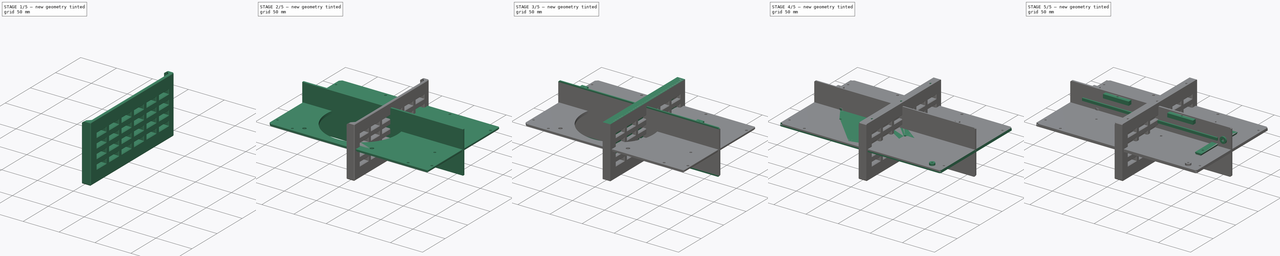
[diagram: build sequence overview — one tinted view per stage of 5, left to right]
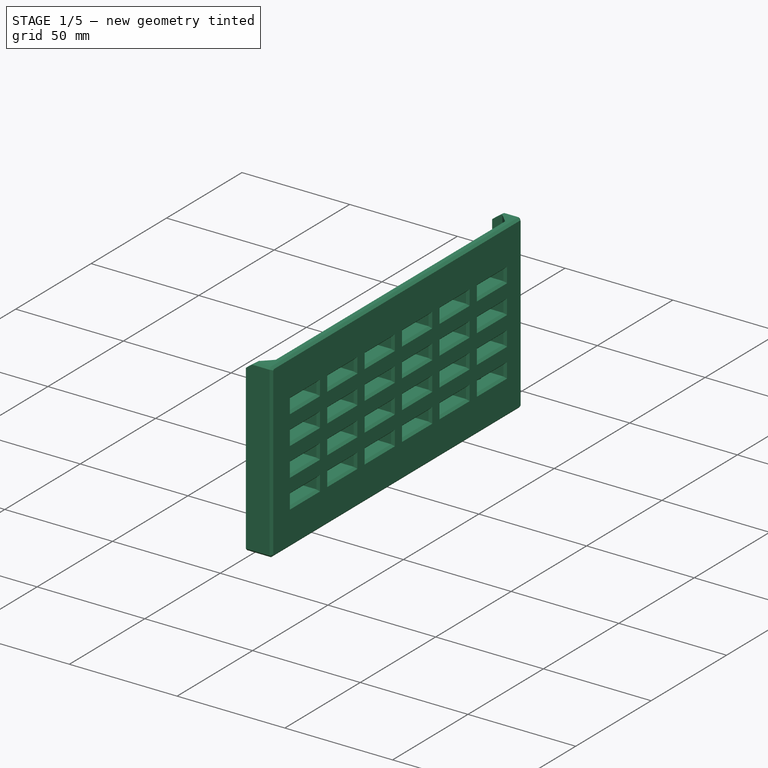
[diagram: stage 1 of 5 — iso view after this stage's code; geometry added in this stage tinted green]
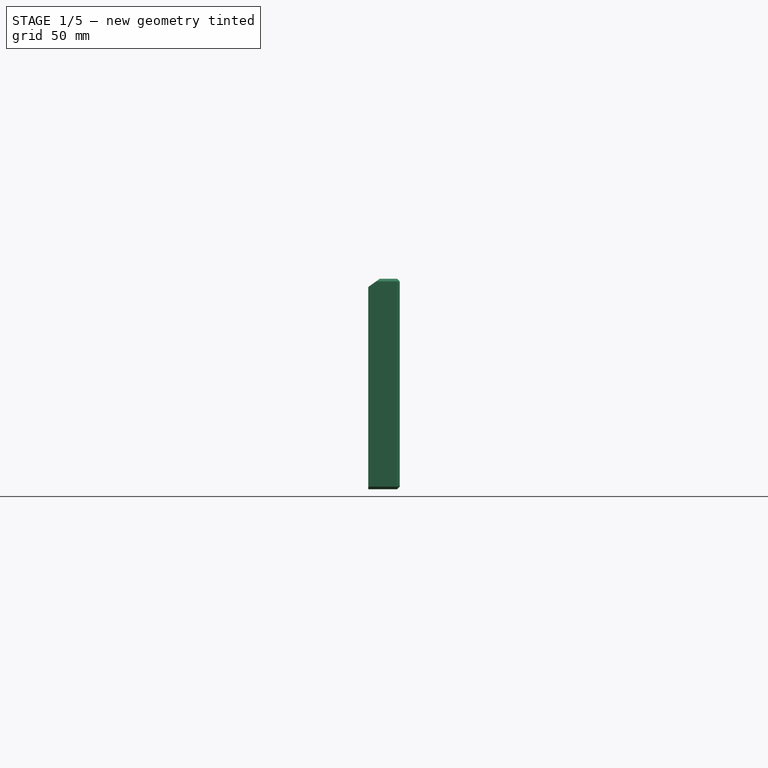
[diagram: stage 1 of 5 — front view after this stage's code; geometry added in this stage tinted green]
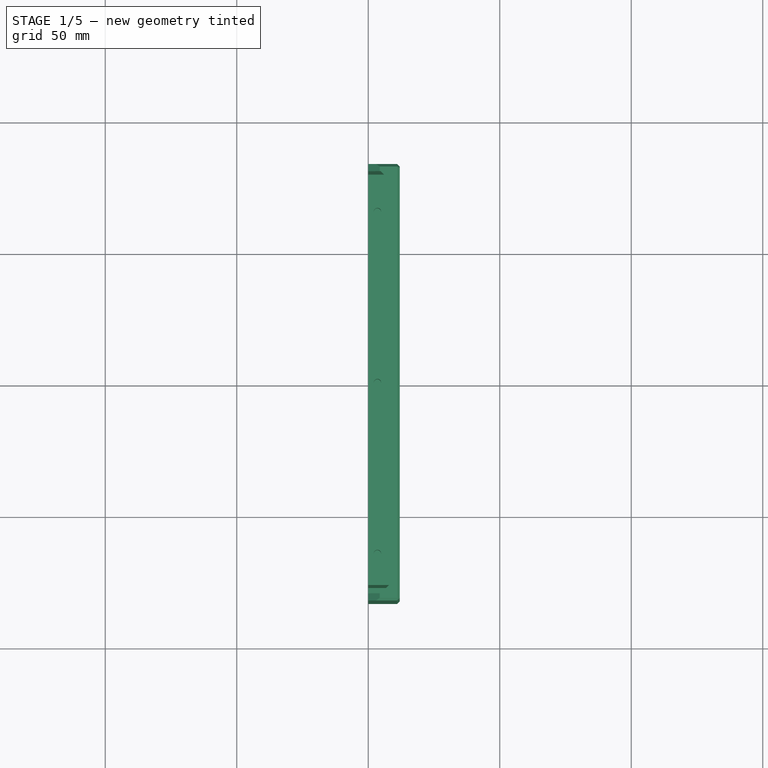
[diagram: stage 1 of 5 — top view after this stage's code; geometry added in this stage tinted green]
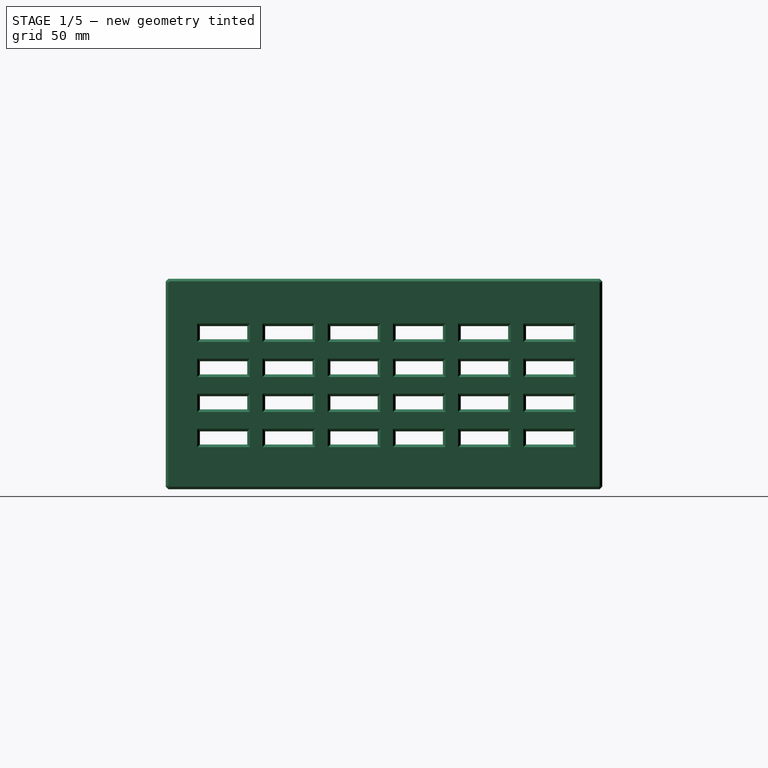
[diagram: stage 1 of 5 — right view after this stage's code; geometry added in this stage tinted green]
FCSTD DOCUMENT  (FreeCAD 0.19R)
Label: PowerBox
License: All rights reserved
LicenseURL: http://en.wikipedia.org/wiki/All_rights_reserved
objects: Sketcher::SketchObject×49, PartDesign::Pocket×29, PartDesign::Pad×18, PartDesign::Chamfer×9, PartDesign::Body×7, PartDesign::Mirrored×5, PartDesign::LinearPattern×3, PartDesign::MultiTransform×2
note: 178 computed .brp shape members not serialized (recipe doc carries the construction recipe); baked Part::Feature solids carry a one-line shape summary decoded from their .brp

FEATURE [Sketcher::SketchObject] Sketch004  label="MainPad"
  FullyConstrained = true
  MapMode = 5
  Placement = pos=(0,0,0) rot=(0.57735,0.57735,0.57735;2.0944rad)
  Support = -> [YZ_Plane001]
  sketch-geometry (4):
    g0: LineSegment StartX=-83 StartY=40 StartZ=0 EndX=83 EndY=40 EndZ=0
    g1: LineSegment StartX=83 StartY=40 StartZ=0 EndX=83 EndY=-40 EndZ=0
    g2: LineSegment StartX=83 StartY=-40 StartZ=0 EndX=-83 EndY=-40 EndZ=0
    g3: LineSegment StartX=-83 StartY=-40 StartZ=0 EndX=-83 EndY=40 EndZ=0
  constraints (10):
    c: Coincident(g0,g1)
    c: Coincident(g1,g2)
    c: Coincident(g2,g3)
    c: Coincident(g3,g0)
    c: Horizontal(g0)
    c: Vertical(g3)
    c: Symmetric(g1,g2,g-2)
    c: Distance(g2) = 166
    c: Distance(g1) = 80
    c: Symmetric(g1,g0,g-1)
FEATURE [PartDesign::Pad] Pad002
  Direction = (1,1,1)
  Length = 12
  Length2 = 100
  Placement = pos=(0,0,0) rot=(0.57735,0.57735,0.57735;2.0944rad)
  Profile = -> Sketch004
  Type = 0
FEATURE [Sketcher::SketchObject] Sketch005  label="MainPocket"
  FullyConstrained = true
  MapMode = 5
  Placement = pos=(0,0,0) rot=(0.57735,0.57735,-0.57735;4.18879rad)
  Support = -> [Pad002]
  sketch-geometry (8):
    g0: LineSegment StartX=-80.25 StartY=36.75 StartZ=0 EndX=80.25 EndY=36.75 EndZ=0
    g1: LineSegment StartX=80.25 StartY=36.75 StartZ=0 EndX=80.25 EndY=-36.75 EndZ=0
    g2: LineSegment StartX=80.25 StartY=-36.75 StartZ=0 EndX=-80.25 EndY=-36.75 EndZ=0
    g3: LineSegment StartX=-80.25 StartY=-36.75 StartZ=0 EndX=-80.25 EndY=36.75 EndZ=0
    g4: LineSegment StartX=-77 StartY=32 StartZ=0 EndX=77 EndY=32 EndZ=0
    g5: LineSegment StartX=77 StartY=32 StartZ=0 EndX=77 EndY=-32 EndZ=0
    g6: LineSegment StartX=77 StartY=-32 StartZ=0 EndX=-77 EndY=-32 EndZ=0
    g7: LineSegment StartX=-77 StartY=-32 StartZ=0 EndX=-77 EndY=32 EndZ=0
  constraints (22):
    c: Coincident(g0,g1)
    c: Coincident(g1,g2)
    c: Coincident(g2,g3)
    c: Coincident(g3,g0)
    c: Horizontal(g0)
    c: Horizontal(g2)
    c: Vertical(g1)
    c: Vertical(g3)
    c: Distance(g0) = 160.5
    c: Distance(g1) = 73.5
    c: Symmetric(g0,g2,g-1)
    c: Coincident(g4,g5)
    c: Coincident(g5,g6)
    c: Coincident(g6,g7)
    c: Coincident(g7,g4)
    c: Horizontal(g4)
    c: Horizontal(g6)
    c: Vertical(g5)
    c: Vertical(g7)
    c: Distance(g7) = 64
    c: Symmetric(g4,g6,g-1)
    c: Distance(g6) = 154
FEATURE [PartDesign::Pocket] Pocket001
  BaseFeature = -> Pad002
  Length = 9
  Length2 = 100
  Placement = pos=(0,0,0) rot=(0.57735,0.57735,0.57735;2.0944rad)
  Profile = -> Sketch005
  Type = 0
FEATURE [Sketcher::SketchObject] Sketch011  label="VentSeed"
  FullyConstrained = true
  MapMode = 5
  Placement = pos=(12,-2.6e-15,2.6e-15) rot=(0.57735,0.57735,0.57735;2.0944rad)
  Support = -> [Pocket001]
  sketch-geometry (4):
    g0: LineSegment StartX=-70 StartY=-23 StartZ=0 EndX=-52 EndY=-23 EndZ=0
    g1: LineSegment StartX=-52 StartY=-23 StartZ=0 EndX=-52 EndY=-18 EndZ=0
    g2: LineSegment StartX=-52 StartY=-18 StartZ=0 EndX=-70 EndY=-18 EndZ=0
    g3: LineSegment StartX=-70 StartY=-18 StartZ=0 EndX=-70 EndY=-23 EndZ=0
  constraints (12):
    c: Coincident(g0,g1)
    c: Coincident(g1,g2)
    c: Coincident(g2,g3)
    c: Coincident(g3,g0)
    c: Horizontal(g0)
    c: Horizontal(g2)
    c: Vertical(g1)
    c: Vertical(g3)
    c: Distance(g1) = 5
    c: Distance(g0) = 18
    c: DistanceX(g2) = -70
    c: DistanceY(g2) = -18
FEATURE [PartDesign::Pocket] Pocket003
  BaseFeature = -> Pocket001
  Length = 5
  Length2 = 100
  Placement = pos=(0,0,0) rot=(0.57735,0.57735,0.57735;2.0944rad)
  Profile = -> Sketch011
  Type = 1
FEATURE [PartDesign::LinearPattern] LinearPattern
  Direction = -> Sketch011 [H_Axis]
  Length = 124
  Occurrences = 6
  Placement = pos=(0,0,0) rot=(0.57735,0.57735,0.57735;2.0944rad)
FEATURE [PartDesign::LinearPattern] LinearPattern001
  Direction = -> Sketch011 [V_Axis]
  Length = 40
  Occurrences = 4
  Placement = pos=(0,0,0) rot=(0.57735,0.57735,0.57735;2.0944rad)
FEATURE [PartDesign::MultiTransform] MultiTransform
  BaseFeature = -> Pocket003
  Originals = -> [Pocket003]
  Placement = pos=(0,0,0) rot=(0.57735,0.57735,0.57735;2.0944rad)
  Transformations = -> [LinearPattern,LinearPattern001]
FEATURE [Sketcher::SketchObject] Sketch024  label="AccessNotch"
  FullyConstrained = false
  MapMode = 5
  Placement = pos=(-1.12e-14,1.76e-14,40) rot=(0,0,-1;1.5708rad)
  Support = -> [MultiTransform]
  sketch-geometry (4):
    g0: LineSegment StartX=-80.25 StartY=9 StartZ=0 EndX=80.25 EndY=9 EndZ=0
    g1: LineSegment StartX=80.25 StartY=9 StartZ=0 EndX=80.25 EndY=-7.04103 EndZ=0
    g2: LineSegment StartX=80.25 StartY=-7.04103 StartZ=0 EndX=-80.25 EndY=-7.04103 EndZ=0
    g3: LineSegment StartX=-80.25 StartY=-7.04103 StartZ=0 EndX=-80.25 EndY=9 EndZ=0
  constraints (10):
    c: Coincident(g0,g1)
    c: Coincident(g1,g2)
    c: Coincident(g2,g3)
    c: Coincident(g3,g0)
    c: Horizontal(g0)
    c: Vertical(g1)
    c: Vertical(g3)
    c: Symmetric(g1,g2,g-2)
    c: DistanceY(g0) = 9
    c: Distance(g2) = 160.5
FEATURE [PartDesign::Pocket] Pocket012
  BaseFeature = -> MultiTransform
  Length = 5
  Length2 = 100
  Placement = pos=(0,0,0) rot=(0.57735,0.57735,0.57735;2.0944rad)
  Profile = -> Sketch024
  Type = 0
FEATURE [Sketcher::SketchObject] Sketch051  label="cornercuts"
  FullyConstrained = true
  MapMode = 5
  Placement = pos=(0,0,0) rot=(1,0,0;3.14159rad)
  sketch-geometry (6):
    g0: LineSegment StartX=-125 StartY=75.7574 StartZ=0 EndX=-120.757 EndY=80 EndZ=0
    g1: LineSegment StartX=-120.757 StartY=80 StartZ=0 EndX=-125 EndY=80 EndZ=0
    g2: LineSegment StartX=-125 StartY=80 StartZ=0 EndX=-125 EndY=75.7574 EndZ=0
    g3: LineSegment StartX=-120.757 StartY=-80 StartZ=0 EndX=-125 EndY=-75.7574 EndZ=0
    g4: LineSegment StartX=-125 StartY=-75.7574 StartZ=0 EndX=-125 EndY=-80 EndZ=0
    g5: LineSegment StartX=-125 StartY=-80 StartZ=0 EndX=-120.757 EndY=-80 EndZ=0
  constraints (18):
    c: Coincident(g0,g1)
    c: Horizontal(g1)
    c: Coincident(g1,g2)
    c: Coincident(g2,g0)
    c: Vertical(g2)
    c: Distance(g0) = 6
    c: Angle(g0) = 0.785398
    c: DistanceX(g1) = -125
    c: DistanceY(g1) = 80
    c: Coincident(g3,g4)
    c: Coincident(g4,g5)
    c: Coincident(g5,g3)
    c: Distance(g3) = 6
    c: Angle(g3) = 2.35619
    c: DistanceX(g4) = -125
    c: DistanceY(g4) = -80
    c: Vertical(g4)
    c: Horizontal(g5)
FEATURE [PartDesign::Pocket] Pocket033
  BaseFeature = -> Pocket012
  Length = 20
  Length2 = 100
  Placement = pos=(0,0,0) rot=(0.57735,0.57735,0.57735;2.0944rad)
  Profile = -> Sketch025
  Type = 0
FEATURE [PartDesign::Pocket] Pocket034
  BaseFeature = -> Pocket033
  Length = 17
  Length2 = 100
  Placement = pos=(0,0,0) rot=(0.57735,0.57735,0.57735;2.0944rad)
  Profile = -> Sketch026
  Type = 0
FEATURE [PartDesign::Pocket] Pocket035
  BaseFeature = -> Pocket034
  Length = 2
  Length2 = 100
  Placement = pos=(0,0,0) rot=(0.57735,0.57735,0.57735;2.0944rad)
  Profile = -> Sketch040
  Type = 0
FEATURE [PartDesign::Pad] Pad021
  BaseFeature = -> Pocket035
  Direction = (1,1,1)
  Length = 3
  Length2 = 100
  Placement = pos=(0,0,0) rot=(0.57735,0.57735,0.57735;2.0944rad)
  Profile = -> Sketch049
  Reversed = true
  Type = 0
FEATURE [PartDesign::Mirrored] Mirrored006
  BaseFeature = -> Pad021
  MirrorPlane = -> Sketch049 [V_Axis]
  Originals = -> [Pad021]
  Placement = pos=(0,0,0) rot=(0.57735,0.57735,0.57735;2.0944rad)
FEATURE [PartDesign::Chamfer] Chamfer030
  Angle = 45
  Base = -> Mirrored006 [Edge138,Edge38,Edge10,Edge12]
  BaseFeature = -> Mirrored006
  ChamferType = 0
  FlipDirection = false
  Placement = pos=(0,0,0) rot=(0.57735,0.57735,0.57735;2.0944rad)
  Size = 1
  Size2 = 1
  SupportTransform = false
FEATURE [PartDesign::Chamfer] Chamfer031
  Angle = 45
  Base = -> Chamfer030 [Face5]
  BaseFeature = -> Chamfer030
  ChamferType = 0
  FlipDirection = false
  Placement = pos=(0,0,0) rot=(0.57735,0.57735,0.57735;2.0944rad)
  Size = 1
  Size2 = 1
  SupportTransform = false
FEATURE [PartDesign::Body] Body004  label="DBEndPanel"
  Group = -> [Sketch008,Pad005,Sketch009,Pocket002,Sketch012,Sketch016,Pad007,Pocket008,Sketch023,Pocket011,Sketch039,Pocket036,Chamfer033,Sketch056,Pocket038]
  Origin = -> Origin004
  Placement = pos=(-128.5,0,0) rot=(0,0,1;0rad)
  Tip = -> Pocket038
FEATURE [Sketcher::SketchObject] Sketch057
  FullyConstrained = false
  MapMode = 5
  Placement = pos=(-3.65e-14,-83,1.83e-14) rot=(-0.57735,-0.57735,0.57735;4.18879rad)
  Support = -> [Chamfer031]
  sketch-geometry (3):
    g0: LineSegment StartX=-40.835 StartY=5.54707 StartZ=0 EndX=-36.6329 EndY=-0.347511 EndZ=0
    g1: LineSegment StartX=-36.6329 StartY=-0.347511 StartZ=0 EndX=-44.1032 EndY=-0.63932 EndZ=0
    g2: LineSegment StartX=-44.1032 StartY=-0.63932 StartZ=0 EndX=-40.835 EndY=5.54707 EndZ=0
  constraints (3):
    c: Coincident(g0,g1)
    c: Coincident(g1,g2)
    c: Coincident(g2,g0)
FEATURE [PartDesign::Pocket] Pocket039
  BaseFeature = -> Chamfer031
  Length = 5
  Length2 = 100
  Placement = pos=(0,0,0) rot=(0.57735,0.57735,0.57735;2.0944rad)
  Profile = -> Sketch057
  Type = 1
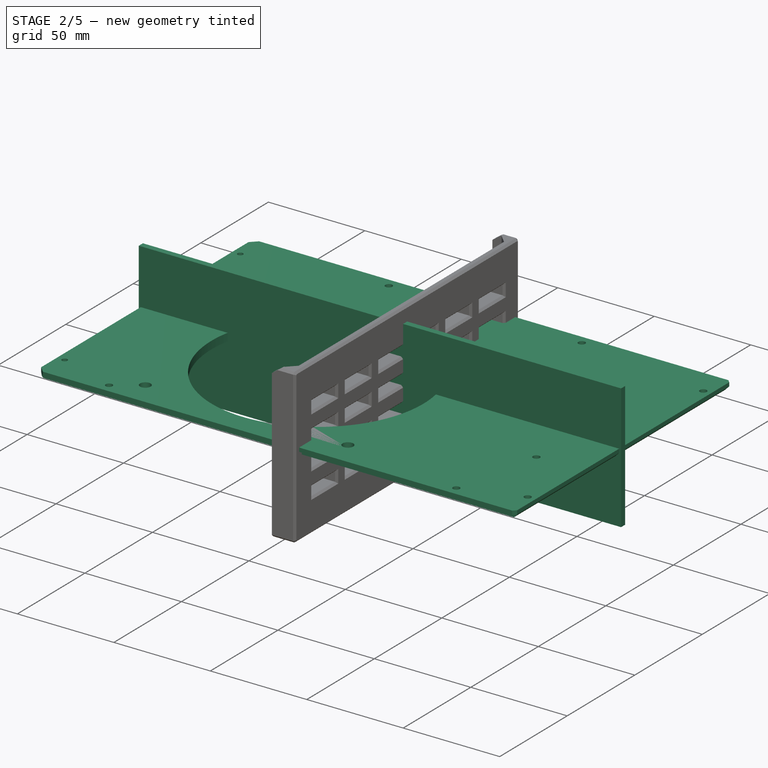
[diagram: stage 2 of 5 — iso view after this stage's code; geometry added in this stage tinted green]
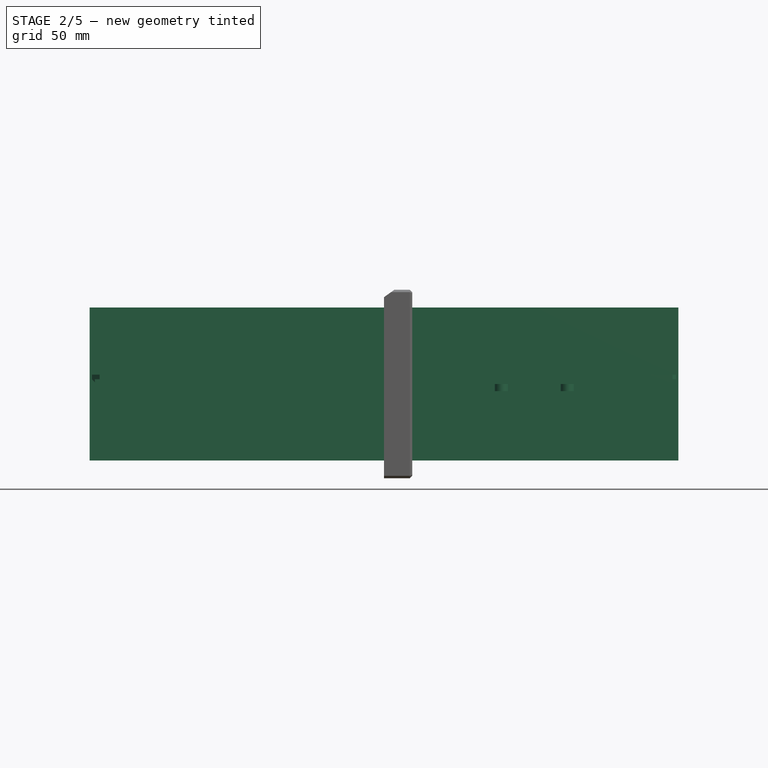
[diagram: stage 2 of 5 — front view after this stage's code; geometry added in this stage tinted green]
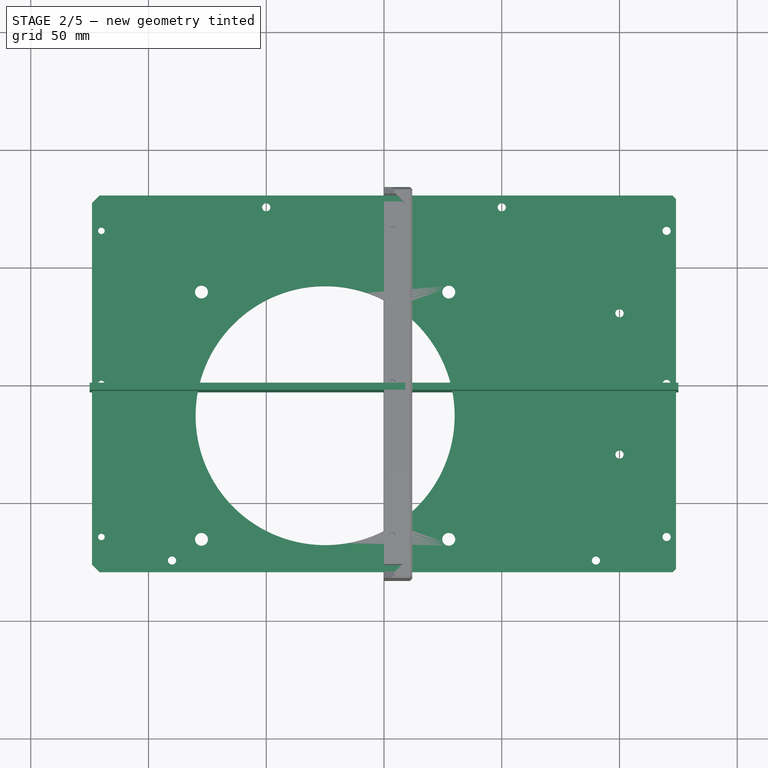
[diagram: stage 2 of 5 — top view after this stage's code; geometry added in this stage tinted green]
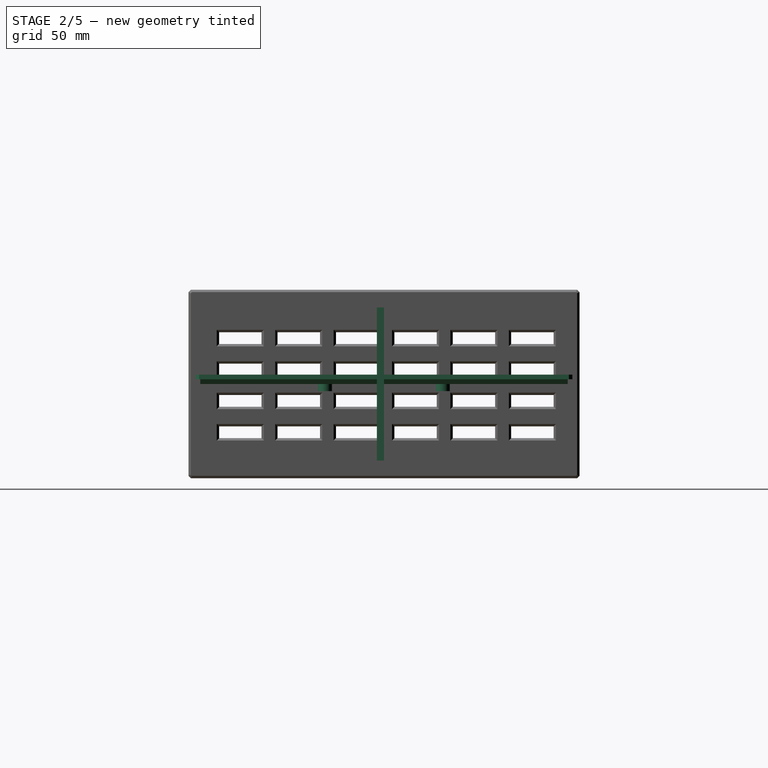
[diagram: stage 2 of 5 — right view after this stage's code; geometry added in this stage tinted green]
FEATURE [Sketcher::SketchObject] Sketch006  label="body"
  FullyConstrained = true
  MapMode = 5
  Placement = pos=(0,0,0) rot=(1,0,0;1.5708rad)
  Support = -> [XZ_Plane002]
  sketch-geometry (4):
    g0: LineSegment StartX=-125 StartY=32.5 StartZ=0 EndX=125 EndY=32.5 EndZ=0
    g1: LineSegment StartX=125 StartY=32.5 StartZ=0 EndX=125 EndY=-32.5 EndZ=0
    g2: LineSegment StartX=125 StartY=-32.5 StartZ=0 EndX=-125 EndY=-32.5 EndZ=0
    g3: LineSegment StartX=-125 StartY=-32.5 StartZ=0 EndX=-125 EndY=32.5 EndZ=0
  constraints (11):
    c: Coincident(g0,g1)
    c: Coincident(g1,g2)
    c: Coincident(g2,g3)
    c: Coincident(g3,g0)
    c: Horizontal(g0)
    c: Vertical(g1)
    c: Vertical(g3)
    c: Distance(g2) = 250
    c: Distance(g1) = 65
    c: Symmetric(g2,g0,g-1)
    c: Equal(g3,g1)
FEATURE [PartDesign::Pad] Pad003
  Direction = (1,1,1)
  Length = 3
  Length2 = 100
  Placement = pos=(0,0,0) rot=(1,0,0;1.5708rad)
  Profile = -> Sketch006
  Type = 0
FEATURE [Sketcher::SketchObject] Sketch010  label="mAINpAD"
  FullyConstrained = true
  MapMode = 5
  Support = -> [XY_Plane005]
  sketch-geometry (4):
    g0: LineSegment StartX=-124 StartY=80 StartZ=0 EndX=124 EndY=80 EndZ=0
    g1: LineSegment StartX=124 StartY=80 StartZ=0 EndX=124 EndY=-80 EndZ=0
    g2: LineSegment StartX=124 StartY=-80 StartZ=0 EndX=-124 EndY=-80 EndZ=0
    g3: LineSegment StartX=-124 StartY=-80 StartZ=0 EndX=-124 EndY=80 EndZ=0
  constraints (11):
    c: Coincident(g0,g1)
    c: Coincident(g1,g2)
    c: Coincident(g2,g3)
    c: Coincident(g3,g0)
    c: Horizontal(g0)
    c: Horizontal(g2)
    c: Vertical(g1)
    c: Vertical(g3)
    c: Distance(g0) = 248
    c: Distance(g1) = 160
    c: Symmetric(g1,g0,g-1)
FEATURE [PartDesign::Pad] Pad006
  Direction = (1,1,1)
  Length = 4
  Length2 = 100
  Profile = -> Sketch010
  Type = 0
FEATURE [Sketcher::SketchObject] Sketch012  label="AllCutouts"
  ExternalGeometry = -> [Pocket002]
  FullyConstrained = false
  MapMode = 5
  Placement = pos=(0,0,0) rot=(0.57735,0.57735,-0.57735;4.18879rad)
  Support = -> [Pocket002]
  sketch-geometry (76):
    g0: LineSegment StartX=-75 StartY=24.75 StartZ=0 EndX=-5 EndY=24.75 EndZ=0
    g1: LineSegment StartX=-5 StartY=24.75 StartZ=0 EndX=-5 EndY=12.25 EndZ=0
    g2: LineSegment StartX=-5 StartY=12.25 StartZ=0 EndX=-75 EndY=12.25 EndZ=0
    g3: LineSegment StartX=-75 StartY=12.25 StartZ=0 EndX=-75 EndY=24.75 EndZ=0
    g4: LineSegment StartX=-2 StartY=5 StartZ=0 EndX=48 EndY=5 EndZ=0
    g5: LineSegment StartX=48 StartY=5 StartZ=0 EndX=48 EndY=-23 EndZ=0
    g6: LineSegment StartX=48 StartY=-23 StartZ=0 EndX=-2 EndY=-23 EndZ=0
    g7: LineSegment StartX=-2 StartY=-23 StartZ=0 EndX=-2 EndY=5 EndZ=0
    g8: Circle CenterX=23 CenterY=11 CenterZ=0 NormalX=0 NormalY=0 NormalZ=1 AngleXU=0 Radius=1.4
    g9: Circle CenterX=23 CenterY=-29 CenterZ=0 NormalX=0 NormalY=0 NormalZ=1 AngleXU=0 Radius=1.4
    g10: LineSegment StartX=-2 StartY=-9 StartZ=0 EndX=48 EndY=-9 EndZ=0
    g11: LineSegment StartX=23 StartY=5 StartZ=0 EndX=23 EndY=-23 EndZ=0
    g12: LineSegment StartX=3 StartY=28 StartZ=0 EndX=15 EndY=28 EndZ=0
    g13: LineSegment StartX=15 StartY=28 StartZ=0 EndX=15 EndY=25 EndZ=0
    g14: LineSegment StartX=15 StartY=25 StartZ=0 EndX=3 EndY=25 EndZ=0
    g15: LineSegment StartX=3 StartY=25 StartZ=0 EndX=3 EndY=28 EndZ=0
    g16: LineSegment StartX=20 StartY=28 StartZ=0 EndX=32 EndY=28 EndZ=0
    g17: LineSegment StartX=32 StartY=28 StartZ=0 EndX=32 EndY=25 EndZ=0
    g18: LineSegment StartX=32 StartY=25 StartZ=0 EndX=20 EndY=25 EndZ=0
    g19: LineSegment StartX=20 StartY=25 StartZ=0 EndX=20 EndY=28 EndZ=0
    g20: LineSegment StartX=37 StartY=28 StartZ=0 EndX=49 EndY=28 EndZ=0
    g21: LineSegment StartX=49 StartY=28 StartZ=0 EndX=49 EndY=25 EndZ=0
    g22: LineSegment StartX=49 StartY=25 StartZ=0 EndX=37 EndY=25 EndZ=0
    g23: LineSegment StartX=37 StartY=25 StartZ=0 EndX=37 EndY=28 EndZ=0
    g24: LineSegment StartX=3 StartY=22 StartZ=0 EndX=15 EndY=22 EndZ=0
    g25: LineSegment StartX=15 StartY=22 StartZ=0 EndX=15 EndY=19 EndZ=0
    g26: LineSegment StartX=15 StartY=19 StartZ=0 EndX=3 EndY=19 EndZ=0
    g27: LineSegment StartX=3 StartY=19 StartZ=0 EndX=3 EndY=22 EndZ=0
    g28: LineSegment StartX=20 StartY=22 StartZ=0 EndX=32 EndY=22 EndZ=0
    g29: LineSegment StartX=32 StartY=22 StartZ=0 EndX=32 EndY=19 EndZ=0
    g30: LineSegment StartX=32 StartY=19 StartZ=0 EndX=20 EndY=19 EndZ=0
    g31: LineSegment StartX=20 StartY=19 StartZ=0 EndX=20 EndY=22 EndZ=0
    g32: LineSegment StartX=37 StartY=22 StartZ=0 EndX=49 EndY=22 EndZ=0
    g33: LineSegment StartX=49 StartY=22 StartZ=0 EndX=49 EndY=19 EndZ=0
    g34: LineSegment StartX=49 StartY=19 StartZ=0 EndX=37 EndY=19 EndZ=0
    g35: LineSegment StartX=37 StartY=19 StartZ=0 EndX=37 EndY=22 EndZ=0
    g36: Circle CenterX=-70 CenterY=28 CenterZ=0 NormalX=0 NormalY=0 NormalZ=1 AngleXU=0 Radius=1.4
    g37: Circle CenterX=-70 CenterY=9 CenterZ=0 NormalX=0 NormalY=0 NormalZ=1 AngleXU=0 Radius=1.4
    g38: LineSegment StartX=-70 StartY=28 StartZ=0 EndX=-70 EndY=9 EndZ=0
    g39: Circle CenterX=-10 CenterY=28 CenterZ=0 NormalX=0 NormalY=0 NormalZ=1 AngleXU=0 Radius=1.4
    g40: Circle CenterX=-10 CenterY=9 CenterZ=0 NormalX=0 NormalY=0 NormalZ=1 AngleXU=0 Radius=1.4
    g41: LineSegment StartX=-10 StartY=28 StartZ=0 EndX=-10 EndY=9 EndZ=0
    g42: LineSegment StartX=57.63 StartY=22.5 StartZ=0 EndX=69.63 EndY=22.5 EndZ=0
    g43: LineSegment StartX=69.63 StartY=22.5 StartZ=0 EndX=69.63 EndY=19.5 EndZ=0
    g44: LineSegment StartX=69.63 StartY=19.5 StartZ=0 EndX=57.63 EndY=19.5 EndZ=0
    g45: LineSegment StartX=57.63 StartY=19.5 StartZ=0 EndX=57.63 EndY=22.5 EndZ=0
    g46: LineSegment StartX=57.63 StartY=16.5 StartZ=0 EndX=69.63 EndY=16.5 EndZ=0
    g47: LineSegment StartX=69.63 StartY=16.5 StartZ=0 EndX=69.63 EndY=13.5 EndZ=0
    g48: LineSegment StartX=69.63 StartY=13.5 StartZ=0 EndX=57.63 EndY=13.5 EndZ=0
    g49: LineSegment StartX=57.63 StartY=13.5 StartZ=0 EndX=57.63 EndY=16.5 EndZ=0
    g50: LineSegment StartX=57.63 StartY=10.5 StartZ=0 EndX=69.63 EndY=10.5 EndZ=0
    g51: LineSegment StartX=69.63 StartY=10.5 StartZ=0 EndX=69.63 EndY=7.5 EndZ=0
    g52: LineSegment StartX=69.63 StartY=7.5 StartZ=0 EndX=57.63 EndY=7.5 EndZ=0
    g53: LineSegment StartX=57.63 StartY=7.5 StartZ=0 EndX=57.63 EndY=10.5 EndZ=0
    g54: LineSegment StartX=57.63 StartY=4.5 StartZ=0 EndX=69.63 EndY=4.5 EndZ=0
    g55: LineSegment StartX=69.63 StartY=4.5 StartZ=0 EndX=69.63 EndY=1.5 EndZ=0
    g56: LineSegment StartX=69.63 StartY=1.5 StartZ=0 EndX=57.63 EndY=1.5 EndZ=0
    g57: LineSegment StartX=57.63 StartY=1.5 StartZ=0 EndX=57.63 EndY=4.5 EndZ=0
    g58: LineSegment StartX=57.63 StartY=-1.5 StartZ=0 EndX=69.63 EndY=-1.5 EndZ=0
    g59: LineSegment StartX=69.63 StartY=-1.5 StartZ=0 EndX=69.63 EndY=-4.5 EndZ=0
    g60: LineSegment StartX=69.63 StartY=-4.5 StartZ=0 EndX=57.63 EndY=-4.5 EndZ=0
    g61: LineSegment StartX=57.63 StartY=-4.5 StartZ=0 EndX=57.63 EndY=-1.5 EndZ=0
    g62: LineSegment StartX=57.63 StartY=-7.5 StartZ=0 EndX=69.63 EndY=-7.5 EndZ=0
    g63: LineSegment StartX=69.63 StartY=-7.5 StartZ=0 EndX=69.63 EndY=-10.5 EndZ=0
    g64: LineSegment StartX=69.63 StartY=-10.5 StartZ=0 EndX=57.63 EndY=-10.5 EndZ=0
    g65: LineSegment StartX=57.63 StartY=-10.5 StartZ=0 EndX=57.63 EndY=-7.5 EndZ=0
    g66: LineSegment StartX=57.63 StartY=-13.5 StartZ=0 EndX=69.63 EndY=-13.5 EndZ=0
    g67: LineSegment StartX=69.63 StartY=-13.5 StartZ=0 EndX=69.63 EndY=-16.5 EndZ=0
    g68: LineSegment StartX=69.63 StartY=-16.5 StartZ=0 EndX=57.63 EndY=-16.5 EndZ=0
    g69: LineSegment StartX=57.63 StartY=-16.5 StartZ=0 EndX=57.63 EndY=-13.5 EndZ=0
    g70: LineSegment StartX=57.63 StartY=-19.5 StartZ=0 EndX=69.63 EndY=-19.5 EndZ=0
    g71: LineSegment StartX=69.63 StartY=-19.5 StartZ=0 EndX=69.63 EndY=-22.5 EndZ=0
    g72: LineSegment StartX=69.63 StartY=-22.5 StartZ=0 EndX=57.63 EndY=-22.5 EndZ=0
    g73: LineSegment StartX=57.63 StartY=-22.5 StartZ=0 EndX=57.63 EndY=-19.5 EndZ=0
    g74: LineSegment StartX=69.63 StartY=32.9418 StartZ=0 EndX=69.63 EndY=-33.4182 EndZ=0
    g75: LineSegment StartX=-78.3226 StartY=18.5 StartZ=0 EndX=-2.53571 EndY=18.5 EndZ=0
  constraints (221):
    c: Coincident(g0,g1)
    c: Coincident(g1,g2)
    c: Coincident(g2,g3)
    c: Coincident(g3,g0)
    c: Horizontal(g0)
    c: Horizontal(g2)
    c: Vertical(g1)
    c: Vertical(g3)
    c: Distance(g0) = 70
    c: DistanceY(g1,g1) = 12.5
    c: Coincident(g4,g5)
    c: Coincident(g5,g6)
    c: Coincident(g6,g7)
    c: Coincident(g7,g4)
    c: Horizontal(g4)
    c: Horizontal(g6)
    c: Vertical(g5)
    c: Vertical(g7)
    c: Distance(g5) = 28
    c: Distance(g6) = 50
    c: DistanceX(g0) = -75
    c: Distance(g9,g8) = 40
    c: PointOnObject(g10,g7)
    c: Horizontal(g10)
    c: Symmetric(g9,g8,g10)
    c: Symmetric(g4,g5,g10)
    c: Vertical(g11)
    c: PointOnObject(g8,g11)
    c: Diameter(g8) = 2.8
    c: Equal(g8,g9)
    c: DistanceX(g5) = 48
    c: DistanceY(g4) = 5
    c: Coincident(g12,g13)
    c: Coincident(g13,g14)
    c: Coincident(g14,g15)
    c: Coincident(g15,g12)
    c: Horizontal(g12)
    c: Horizontal(g14)
    c: Vertical(g13)
    c: Vertical(g15)
    c: Coincident(g16,g17)
    c: Coincident(g17,g18)
    c: Coincident(g18,g19)
    c: Coincident(g19,g16)
    c: Horizontal(g16)
    c: Horizontal(g18)
    c: Vertical(g17)
    c: Vertical(g19)
    c: Coincident(g20,g21)
    c: Coincident(g21,g22)
    c: Coincident(g22,g23)
    c: Coincident(g23,g20)
    c: Horizontal(g20)
    c: Horizontal(g22)
    c: Vertical(g21)
    c: Vertical(g23)
    c: Distance(g13) = 3
    c: Distance(g17) = 3
    c: Distance(g21) = 3
    c: DistanceY(g12) = 28
    c: DistanceY(g16) = 28
    c: DistanceY(g20) = 28
    c: Distance(g12,g16) = 5
    c: Distance(g16,g20) = 5
    c: Distance(g12) = 12
    c: Coincident(g24,g25)
    c: Coincident(g25,g26)
    c: Coincident(g26,g27)
    c: Coincident(g27,g24)
    c: Horizontal(g24)
    c: Horizontal(g26)
    c: Vertical(g25)
    c: Vertical(g27)
    c: Coincident(g28,g29)
    c: Coincident(g29,g30)
    c: Coincident(g30,g31)
    c: Coincident(g31,g28)
    c: Horizontal(g28)
    c: Horizontal(g30)
    c: Vertical(g29)
    c: Vertical(g31)
    c: Coincident(g32,g33)
    c: Coincident(g33,g34)
    c: Coincident(g34,g35)
    c: Coincident(g35,g32)
    c: Horizontal(g32)
    c: Horizontal(g34)
    c: Vertical(g33)
    c: Vertical(g35)
    c: Distance(g24,g13) = 3
    c: Equal(g27,g15)
    c: Equal(g15,g31)
    c: Equal(g31,g35)
    c: Equal(g14,g24)
    c: Equal(g24,g28)
    c: Equal(g28,g32)
    c: Equal(g32,g22)
    c: Equal(g22,g18)
    c: DistanceX(g13,g24) = 0
    c: Distance(g28,g17) = 3
    c: Distance(g22,g32) = 3
    c: DistanceX(g17,g28) = 0
    c: DistanceX(g22,g32) = 0
    c: Coincident(g38,g36)
    c: Coincident(g38,g37)
    c: Diameter(g36) = 2.8
    c: Equal(g36,g37)
    c: Symmetric(g6,g5,g11)
    c: PointOnObject(g11,g4)
    c: Coincident(g41,g39)
    c: Coincident(g41,g40)
    c: Diameter(g40) = 2.8
    c: Equal(g40,g39)
    c: Distance(g0,g38) = 5
    c: Distance(g0,g41) = 5
    c: Coincident(g42,g43)
    c: Coincident(g43,g44)
    c: Coincident(g44,g45)
    c: Coincident(g45,g42)
    c: Horizontal(g42)
    c: Horizontal(g44)
    c: Vertical(g43)
    c: Vertical(g45)
    c: Coincident(g46,g47)
    c: Coincident(g47,g48)
    c: Coincident(g48,g49)
    c: Coincident(g49,g46)
    c: Horizontal(g46)
    c: Horizontal(g48)
    c: Vertical(g47)
    c: Vertical(g49)
    c: Coincident(g50,g51)
    c: Coincident(g51,g52)
    c: Coincident(g52,g53)
    c: Coincident(g53,g50)
    c: Horizontal(g50)
    c: Horizontal(g52)
    c: Vertical(g51)
    c: Vertical(g53)
    c: Coincident(g54,g55)
    c: Coincident(g55,g56)
    c: Coincident(g56,g57)
    c: Coincident(g57,g54)
    c: Horizontal(g54)
    c: Horizontal(g56)
    c: Vertical(g55)
    c: Vertical(g57)
    c: Coincident(g58,g59)
    c: Coincident(g59,g60)
    c: Coincident(g60,g61)
    c: Coincident(g61,g58)
    c: Horizontal(g58)
    c: Horizontal(g60)
    c: Vertical(g59)
    c: Vertical(g61)
    c: Coincident(g62,g63)
    c: Coincident(g63,g64)
    c: Coincident(g64,g65)
    c: Coincident(g65,g62)
    c: Horizontal(g62)
    c: Horizontal(g64)
    c: Vertical(g63)
    c: Vertical(g65)
    c: Coincident(g66,g67)
    c: Coincident(g67,g68)
    c: Coincident(g68,g69)
    c: Coincident(g69,g66)
    c: Horizontal(g66)
    c: Horizontal(g68)
    c: Vertical(g67)
    c: Vertical(g69)
    c: Coincident(g70,g71)
    c: Coincident(g71,g72)
    c: Coincident(g72,g73)
    c: Coincident(g73,g70)
    c: Horizontal(g70)
    c: Horizontal(g72)
    c: Vertical(g71)
    c: Vertical(g73)
    c: Equal(g71,g67)
    c: Equal(g67,g63)
    c: Equal(g63,g59)
    c: Equal(g59,g55)
    c: Equal(g55,g51)
    c: Equal(g51,g47)
    c: Equal(g47,g43)
    c: Equal(g43,g33)
    c: Equal(g70,g66)
    c: Equal(g66,g62)
    c: Equal(g62,g58)
    c: Equal(g58,g54)
    c: Equal(g54,g50)
    c: Equal(g50,g46)
    c: Equal(g46,g42)
    c: Equal(g42,g22)
    c: Vertical(g74)
    c: PointOnObject(g42,g74)
    c: PointOnObject(g46,g74)
    c: PointOnObject(g50,g74)
    c: PointOnObject(g54,g74)
    c: PointOnObject(g58,g74)
    c: PointOnObject(g62,g74)
    c: PointOnObject(g66,g74)
    c: PointOnObject(g70,g74)
    c: Distance(g44,g46) = 3
    c: Distance(g48,g50) = 3
    c: Distance(g52,g54) = 3
    c: Distance(g56,g58) = 3
    c: Distance(g60,g62) = 3
    c: Distance(g64,g66) = 3
    c: Distance(g68,g70) = 3
    c: DistanceY(g55) = 1.5
    c: DistanceX(g74) = 69.63
    c: Distance(g74) = 66.36
    c: DistanceX(g12) = 3
    c: Symmetric(g2,g0,g75)
    c: Symmetric(g36,g37,g75)
    c: Symmetric(g39,g40,g75)
    c: Distance(g38) = 19
    c: Distance(g41) = 19
    c: DistanceY(g75) = 18.5
FEATURE [Sketcher::SketchObject] Sketch013
  FullyConstrained = true
  MapMode = 5
  Placement = pos=(0,0,4) rot=(0,0,1;0rad)
  Support = -> [Pad006]
  sketch-geometry (21):
    g0: LineSegment StartX=-77.5 StartY=39 StartZ=0 EndX=27.5 EndY=39 EndZ=0
    g1: LineSegment StartX=27.5 StartY=39 StartZ=0 EndX=27.5 EndY=-66 EndZ=0
    g2: LineSegment StartX=27.5 StartY=-66 StartZ=0 EndX=-77.5 EndY=-66 EndZ=0
    g3: LineSegment StartX=-77.5 StartY=-66 StartZ=0 EndX=-77.5 EndY=39 EndZ=0
    g4: Circle CenterX=-25 CenterY=-13.5 CenterZ=0 NormalX=0 NormalY=0 NormalZ=1 AngleXU=0 Radius=55
    g5: Circle CenterX=-77.5 CenterY=39 CenterZ=0 NormalX=0 NormalY=0 NormalZ=1 AngleXU=0 Radius=2.75
    g6: Circle CenterX=27.5 CenterY=39 CenterZ=0 NormalX=0 NormalY=0 NormalZ=1 AngleXU=0 Radius=2.75
    g7: Circle CenterX=27.5 CenterY=-66 CenterZ=0 NormalX=0 NormalY=0 NormalZ=1 AngleXU=0 Radius=2.75
    g8: Circle CenterX=-77.5 CenterY=-66 CenterZ=0 NormalX=0 NormalY=0 NormalZ=1 AngleXU=0 Radius=2.75
    g9: Circle CenterX=-50 CenterY=75 CenterZ=0 NormalX=0 NormalY=0 NormalZ=1 AngleXU=0 Radius=1.75
    g10: Circle CenterX=90 CenterY=-75 CenterZ=0 NormalX=0 NormalY=0 NormalZ=1 AngleXU=0 Radius=1.75
    g11: Circle CenterX=-90 CenterY=-75 CenterZ=0 NormalX=0 NormalY=0 NormalZ=1 AngleXU=0 Radius=1.75
    g12: Circle CenterX=120 CenterY=65 CenterZ=0 NormalX=0 NormalY=0 NormalZ=1 AngleXU=0 Radius=1.75
    g13: Circle CenterX=120 CenterY=-65 CenterZ=0 NormalX=0 NormalY=0 NormalZ=1 AngleXU=0 Radius=1.75
    g14: Circle CenterX=-120 CenterY=65 CenterZ=0 NormalX=0 NormalY=0 NormalZ=1 AngleXU=0 Radius=1.4
    g15: Circle CenterX=-120 CenterY=-65 CenterZ=0 NormalX=0 NormalY=0 NormalZ=1 AngleXU=0 Radius=1.4
    g16: Circle CenterX=100 CenterY=30 CenterZ=0 NormalX=0 NormalY=0 NormalZ=1 AngleXU=0 Radius=1.75
    g17: Circle CenterX=100 CenterY=-30 CenterZ=0 NormalX=0 NormalY=0 NormalZ=1 AngleXU=0 Radius=1.75
    g18: Circle CenterX=50 CenterY=75 CenterZ=0 NormalX=0 NormalY=0 NormalZ=1 AngleXU=0 Radius=1.75
    g19: Circle CenterX=-120 CenterY=0 CenterZ=0 NormalX=0 NormalY=0 NormalZ=1 AngleXU=0 Radius=1.4
    g20: Circle CenterX=120 CenterY=0 CenterZ=0 NormalX=0 NormalY=0 NormalZ=1 AngleXU=0 Radius=1.75
  constraints (53):
    c: Coincident(g0,g1)
    c: Coincident(g1,g2)
    c: Coincident(g2,g3)
    c: Coincident(g3,g0)
    c: Horizontal(g0)
    c: Horizontal(g2)
    c: Vertical(g3)
    c: Distance(g0) = 105
    c: Distance(g1) = 105
    c: Diameter(g4) = 110
    c: DistanceX(g4) = -25
    c: Coincident(g5,g0)
    c: Coincident(g6,g0)
    c: Coincident(g7,g1)
    c: Coincident(g8,g2)
    c: Symmetric(g7,g5,g4)
    c: Equal(g0,g2)
    c: Diameter(g5) = 5.5
    c: Equal(g5,g6)
    c: Equal(g5,g7)
    c: Equal(g5,g8)
    c: Symmetric(g10,g11,g-2)
    c: Distance(g10,g11) = 180
    c: Diameter(g11) = 3.5
    c: Equal(g11,g10)
    c: DistanceY(g10) = -75
    c: Diameter(g9) = 3.5
    c: Diameter(g12) = 3.5
    c: Equal(g12,g13)
    c: Symmetric(g13,g12,g-1)
    c: Distance(g12,g13) = 130
    c: DistanceX(g13) = 120
    c: DistanceX(g14) = -120
    c: Symmetric(g15,g14,g-1)
    c: Distance(g15,g14) = 130
    c: Diameter(g14) = 2.8
    c: Equal(g14,g15)
    c: DistanceY(g4) = -13.5
    c: Diameter(g16) = 3.5
    c: Equal(g16,g17)
    c: Symmetric(g17,g16,g-1)
    c: Distance(g17,g16) = 60
    c: DistanceX(g17) = 100
    c: Symmetric(g18,g9,g-2)
    c: Distance(g9,g18) = 100
    c: DistanceY(g18) = 75
    c: Diameter(g18) = 3.5
    c: PointOnObject(g19,g-1)
    c: Diameter(g19) = 2.8
    c: DistanceX(g19) = -120
    c: PointOnObject(g20,g-1)
    c: Diameter(g20) = 3.5
    c: DistanceX(g20) = 120
FEATURE [PartDesign::Pocket] Pocket005
  BaseFeature = -> Pad006
  Length = 5
  Length2 = 100
  Profile = -> Sketch013
  Type = 0
FEATURE [PartDesign::Body] Body003  label="Floor250x67"
  Group = -> [Sketch007,Pad004,Sketch015,Pocket007,Sketch032,Pad011,Sketch033,Mirrored,Pocket017,Sketch036,Pad013,Sketch037,Pocket019,MultiTransform001,LinearPattern002,Sketch044,Pad017,Mirrored003,Chamfer025]
  Origin = -> Origin003
  Placement = pos=(0,80,0) rot=(0,0,1;0rad)
  Tip = -> Chamfer025
FEATURE [Sketcher::SketchObject] Sketch050  label="sideNotches"
  FullyConstrained = true
  MapMode = 5
  Placement = pos=(-124,0,0) rot=(0.57735,-0.57735,-0.57735;2.0944rad)
  Support = -> [Pocket005]
  sketch-geometry (4):
    g0: LineSegment StartX=78 StartY=2 StartZ=0 EndX=80 EndY=2 EndZ=0
    g1: LineSegment StartX=80 StartY=2 StartZ=0 EndX=80 EndY=0 EndZ=0
    g2: LineSegment StartX=80 StartY=0 StartZ=0 EndX=78 EndY=0 EndZ=0
    g3: LineSegment StartX=78 StartY=0 StartZ=0 EndX=78 EndY=2 EndZ=0
  constraints (12):
    c: Coincident(g0,g1)
    c: Coincident(g1,g2)
    c: Coincident(g2,g3)
    c: Coincident(g3,g0)
    c: Horizontal(g0)
    c: Horizontal(g2)
    c: Vertical(g1)
    c: Vertical(g3)
    c: PointOnObject(g1,g-1)
    c: Distance(g3) = 2
    c: Distance(g0) = 2
    c: DistanceX(g1) = 80
FEATURE [PartDesign::Pocket] Pocket031
  BaseFeature = -> Pocket005
  Length = 5
  Length2 = 100
  Profile = -> Sketch050
  Type = 1
FEATURE [PartDesign::Mirrored] Mirrored004
  BaseFeature = -> Pocket031
  MirrorPlane = -> Sketch050 [V_Axis]
  Originals = -> [Pocket031]
FEATURE [PartDesign::Chamfer] Chamfer
  Angle = 45
  Base = -> Mirrored004 [Edge34]
  BaseFeature = -> Mirrored004
  ChamferType = 0
  FlipDirection = false
  Size = 2
  Size2 = 1
  SupportTransform = false
FEATURE [PartDesign::Pocket] Pocket037
  BaseFeature = -> Chamfer
  Length = 5
  Length2 = 100
  Profile = -> Sketch051
  Type = 0
FEATURE [PartDesign::Chamfer] Chamfer034
  Angle = 45
  Base = -> Pocket037 [Edge65,Edge64]
  BaseFeature = -> Pocket037
  ChamferType = 0
  FlipDirection = false
  Size = 1.5
  Size2 = 1
  SupportTransform = false
FEATURE [PartDesign::Chamfer] Chamfer035
  Angle = 45
  Base = -> Chamfer034 [Edge37]
  BaseFeature = -> Chamfer034
  ChamferType = 0
  FlipDirection = false
  Size = 2
  Size2 = 1
  SupportTransform = false
FEATURE [PartDesign::Body] Body002  label="Top250x67"
  Group = -> [Sketch006,Pad003,Sketch014,Pocket006,Sketch029,Pad010,Sketch030,Sketch034,Pad012,Sketch038,Sketch041,Sketch042,Pocket040,Pocket041,Pad022,Pad023,Mirrored007,Chamfer036]
  Origin = -> Origin002
  Placement = pos=(0,-77,0) rot=(0,0,1;0rad)
  Tip = -> Chamfer036
FEATURE [Sketcher::SketchObject] Sketch058
  FullyConstrained = true
  MapMode = 5
  Placement = pos=(0,0,0) rot=(1,0,0;3.14159rad)
  Support = -> [Chamfer035]
  sketch-geometry (8):
    g0: Circle CenterX=50 CenterY=25 CenterZ=0 NormalX=0 NormalY=0 NormalZ=1 AngleXU=0 Radius=3
    g1: Circle CenterX=78 CenterY=25 CenterZ=0 NormalX=0 NormalY=0 NormalZ=1 AngleXU=0 Radius=3
    g2: Circle CenterX=50 CenterY=-25 CenterZ=0 NormalX=0 NormalY=0 NormalZ=1 AngleXU=0 Radius=3
    g3: Circle CenterX=78 CenterY=-25 CenterZ=0 NormalX=0 NormalY=0 NormalZ=1 AngleXU=0 Radius=3
    g4: LineSegment StartX=50 StartY=25 StartZ=0 EndX=78 EndY=25 EndZ=0
    g5: LineSegment StartX=78 StartY=-25 StartZ=0 EndX=50 EndY=-25 EndZ=0
    g6: LineSegment StartX=50 StartY=25 StartZ=0 EndX=50 EndY=-25 EndZ=0
    g7: LineSegment StartX=78 StartY=25 StartZ=0 EndX=78 EndY=-25 EndZ=0
  constraints (19):
    c: Coincident(g4,g0)
    c: Coincident(g4,g1)
    c: Coincident(g5,g3)
    c: Coincident(g5,g2)
    c: Coincident(g6,g0)
    c: Coincident(g6,g2)
    c: Coincident(g7,g1)
    c: Coincident(g7,g3)
    c: Equal(g6,g7)
    c: Distance(g6) = 50
    c: Distance(g4) = 28
    c: Horizontal(g4)
    c: Equal(g5,g4)
    c: Diameter(g0) = 6
    c: Equal(g0,g1)
    c: Equal(g0,g2)
    c: Equal(g0,g3)
    c: Symmetric(g2,g0,g-1)
    c: Distance(g-1,g6) = 50
FEATURE [PartDesign::Pad] Pad024
  BaseFeature = -> Chamfer035
  Direction = (1,1,1)
  Length = 3
  Length2 = 100
  Profile = -> Sketch058
  Type = 0
FEATURE [Sketcher::SketchObject] Sketch059
  FullyConstrained = true
  MapMode = 5
  Placement = pos=(0,0,-3) rot=(1,0,0;3.14159rad)
  Support = -> [Pad024]
  sketch-geometry (4):
    g0: Circle CenterX=50 CenterY=25 CenterZ=0 NormalX=0 NormalY=0 NormalZ=1 AngleXU=0 Radius=1.4
    g1: Circle CenterX=78 CenterY=25 CenterZ=0 NormalX=0 NormalY=0 NormalZ=1 AngleXU=0 Radius=1.4
    g2: Circle CenterX=50 CenterY=-25 CenterZ=0 NormalX=0 NormalY=0 NormalZ=1 AngleXU=0 Radius=1.4
    g3: Circle CenterX=78 CenterY=-25 CenterZ=0 NormalX=0 NormalY=0 NormalZ=1 AngleXU=0 Radius=1.4
  constraints (10):
    c: Symmetric(g2,g0,g-1)
    c: Symmetric(g3,g1,g-1)
    c: DistanceX(g0) = 50
    c: Distance(g1,g0) = 28
    c: Diameter(g0) = 2.8
    c: Equal(g0,g1)
    c: Equal(g0,g3)
    c: Equal(g0,g2)
    c: Distance(g3,g1) = 50
    c: Distance(g2,g0) = 50
FEATURE [PartDesign::Pocket] Pocket042
  BaseFeature = -> Pad024
  Length = 5
  Length2 = 100
  Profile = -> Sketch059
  Type = 0
FEATURE [PartDesign::Body] Body005  label="FanPanel"
  Group = -> [Sketch010,Pad006,Sketch013,Pocket005,Sketch050,Pocket031,Mirrored004,Chamfer,Sketch051,Pocket037,Chamfer034,Chamfer035,Sketch058,Pad024,Sketch059,Pocket042]
  Origin = -> Origin005
  Placement = pos=(0,0,32.5) rot=(0,0,1;0rad)
  Tip = -> Pocket042
FEATURE [Sketcher::SketchObject] Sketch060  label="PSUnotch2"
  FullyConstrained = false
  MapMode = 5
  Placement = pos=(0,0,0) rot=(0.57735,0.57735,-0.57735;4.18879rad)
  Support = -> [Pocket039]
  sketch-geometry (4):
    g0: LineSegment StartX=73.7068 StartY=26.0888 StartZ=0 EndX=78.3333 EndY=26.0888 EndZ=0
    g1: LineSegment StartX=78.3333 StartY=26.0888 StartZ=0 EndX=78.3333 EndY=-25.9562 EndZ=0
    g2: LineSegment StartX=78.3333 StartY=-25.9562 StartZ=0 EndX=73.7068 EndY=-25.9562 EndZ=0
    g3: LineSegment StartX=73.7068 StartY=-25.9562 StartZ=0 EndX=73.7068 EndY=26.0888 EndZ=0
  constraints (8):
    c: Coincident(g0,g1)
    c: Coincident(g1,g2)
    c: Coincident(g2,g3)
    c: Coincident(g3,g0)
    c: Horizontal(g0)
    c: Horizontal(g2)
    c: Vertical(g1)
    c: Vertical(g3)
FEATURE [PartDesign::Pocket] Pocket043
  BaseFeature = -> Pocket039
  Length = 2
  Length2 = 100
  Placement = pos=(0,0,0) rot=(0.57735,0.57735,0.57735;2.0944rad)
  Profile = -> Sketch060
  Type = 0
FEATURE [PartDesign::Body] Body001  label="VentEndPanel166x80"
  Group = -> [Sketch003,Sketch004,Pad002,Sketch005,Pocket001,Sketch011,Pocket003,MultiTransform,LinearPattern,LinearPattern001,Sketch024,Pocket012,Sketch025,Sketch026,Sketch040,Sketch049,Pocket033,Pocket034,Pocket035,Pad021,Mirrored006,Chamfer030,Chamfer031,Sketch057,Pocket039,Sketch060,Pocket043]
  Origin = -> Origin001
  Placement = pos=(116.5,0,0) rot=(0,0,1;0rad)
  Tip = -> Pocket043
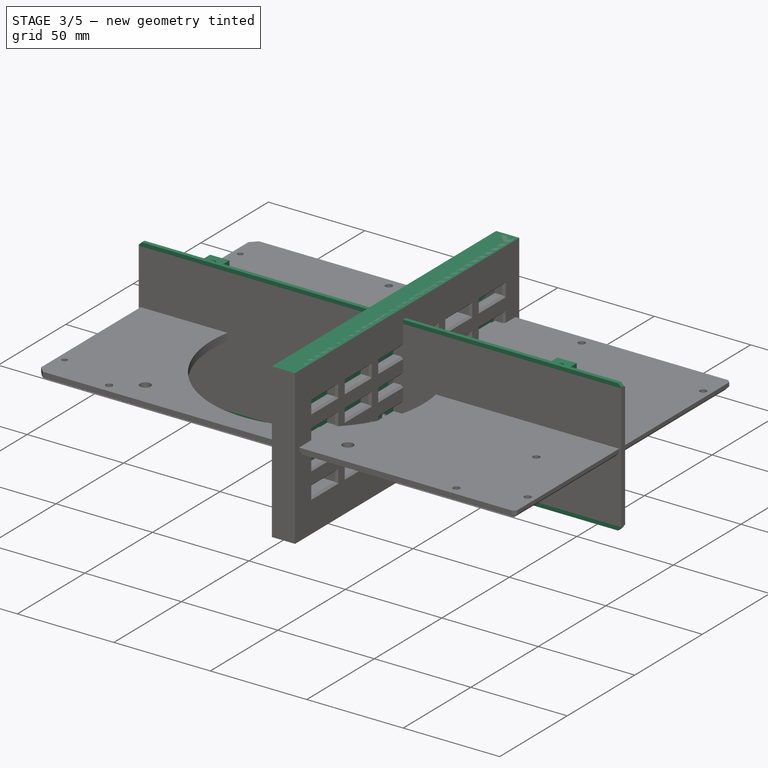
[diagram: stage 3 of 5 — iso view after this stage's code; geometry added in this stage tinted green]
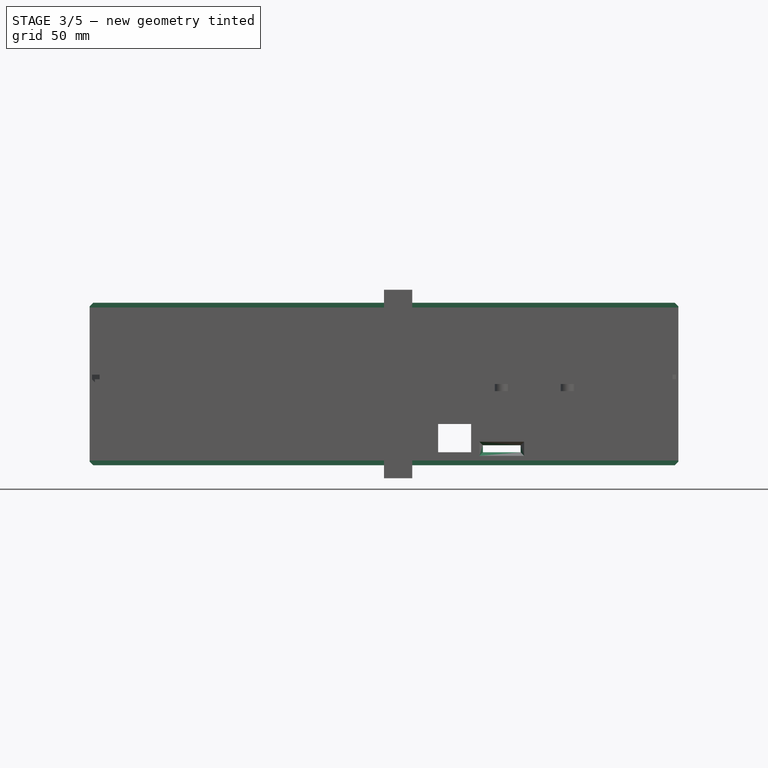
[diagram: stage 3 of 5 — front view after this stage's code; geometry added in this stage tinted green]
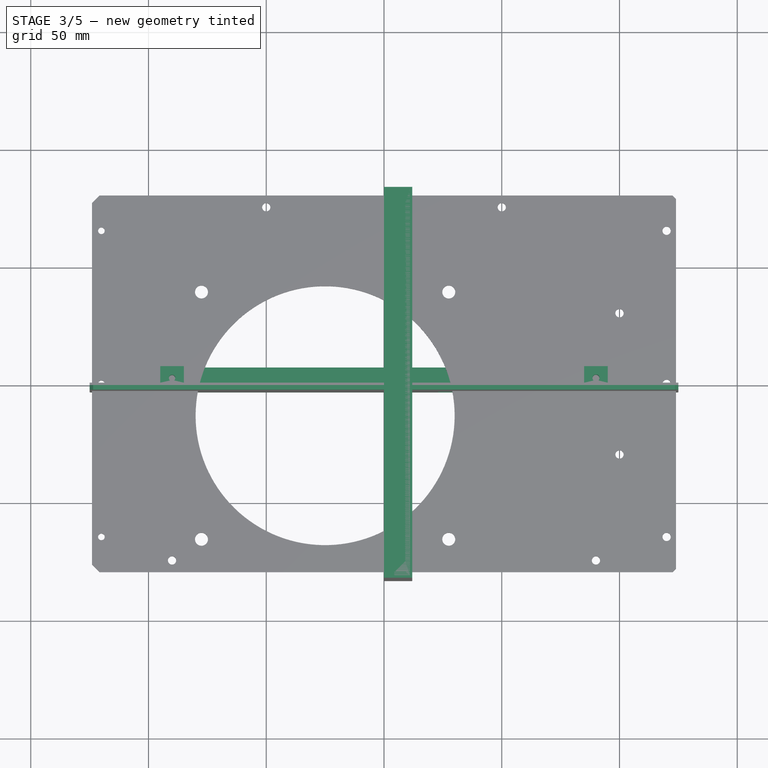
[diagram: stage 3 of 5 — top view after this stage's code; geometry added in this stage tinted green]
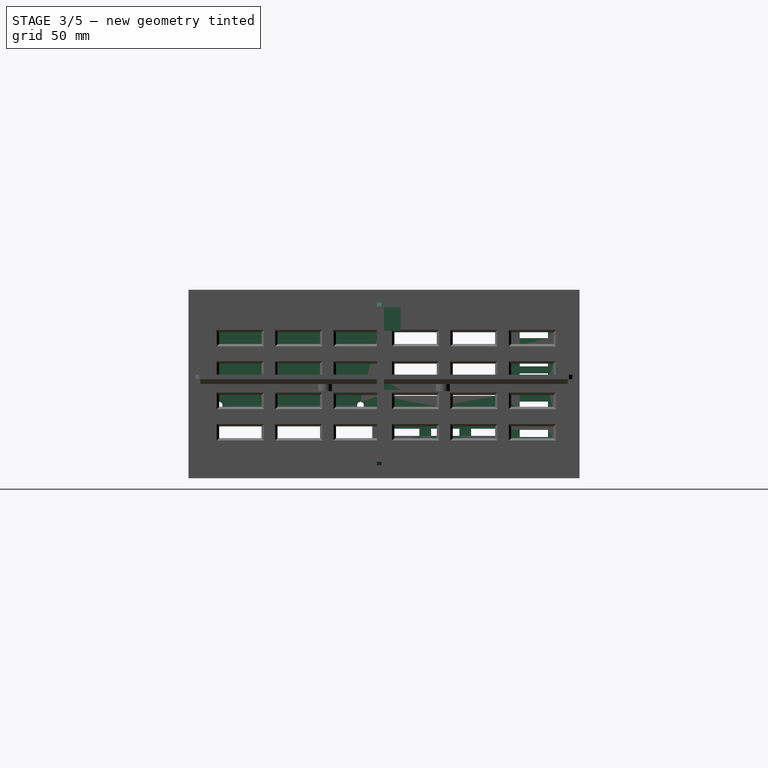
[diagram: stage 3 of 5 — right view after this stage's code; geometry added in this stage tinted green]
FEATURE [Sketcher::SketchObject] Sketch008  label="MainPad001"
  FullyConstrained = true
  MapMode = 5
  Placement = pos=(0,0,0) rot=(0.57735,0.57735,0.57735;2.0944rad)
  Support = -> [YZ_Plane004]
  sketch-geometry (4):
    g0: LineSegment StartX=-83 StartY=40 StartZ=0 EndX=83 EndY=40 EndZ=0
    g1: LineSegment StartX=83 StartY=40 StartZ=0 EndX=83 EndY=-40 EndZ=0
    g2: LineSegment StartX=83 StartY=-40 StartZ=0 EndX=-83 EndY=-40 EndZ=0
    g3: LineSegment StartX=-83 StartY=-40 StartZ=0 EndX=-83 EndY=40 EndZ=0
  constraints (11):
    c: Coincident(g0,g1)
    c: Coincident(g1,g2)
    c: Coincident(g2,g3)
    c: Coincident(g3,g0)
    c: Horizontal(g0)
    c: Horizontal(g2)
    c: Vertical(g1)
    c: Vertical(g3)
    c: Distance(g1) = 80
    c: Distance(g2) = 166
    c: Symmetric(g0,g2,g-1)
FEATURE [PartDesign::Pad] Pad005
  Direction = (1,1,1)
  Length = 12
  Length2 = 100
  Placement = pos=(0,0,0) rot=(0.57735,0.57735,0.57735;2.0944rad)
  Profile = -> Sketch008
  Type = 0
FEATURE [Sketcher::SketchObject] Sketch009  label="MainPocket001"
  FullyConstrained = true
  MapMode = 5
  Placement = pos=(12,-2.6e-15,2.6e-15) rot=(0.57735,0.57735,0.57735;2.0944rad)
  Support = -> [Pad005]
  sketch-geometry (4):
    g0: LineSegment StartX=-80.25 StartY=36.75 StartZ=0 EndX=80.25 EndY=36.75 EndZ=0
    g1: LineSegment StartX=80.25 StartY=36.75 StartZ=0 EndX=80.25 EndY=-36.75 EndZ=0
    g2: LineSegment StartX=80.25 StartY=-36.75 StartZ=0 EndX=-80.25 EndY=-36.75 EndZ=0
    g3: LineSegment StartX=-80.25 StartY=-36.75 StartZ=0 EndX=-80.25 EndY=36.75 EndZ=0
  constraints (11):
    c: Coincident(g0,g1)
    c: Coincident(g1,g2)
    c: Coincident(g2,g3)
    c: Coincident(g3,g0)
    c: Horizontal(g0)
    c: Horizontal(g2)
    c: Vertical(g1)
    c: Vertical(g3)
    c: Symmetric(g1,g0,g-1)
    c: Distance(g0) = 160.5
    c: Distance(g1) = 73.5
FEATURE [PartDesign::Pocket] Pocket002
  BaseFeature = -> Pad005
  Length = 9
  Length2 = 100
  Placement = pos=(0,0,0) rot=(0.57735,0.57735,0.57735;2.0944rad)
  Profile = -> Sketch009
  Type = 0
FEATURE [Sketcher::SketchObject] Sketch014  label="USBholes"
  FullyConstrained = true
  MapMode = 5
  Placement = pos=(0,-3,-7e-16) rot=(1,0,0;1.5708rad)
  Support = -> [Pad003]
  sketch-geometry (8):
    g0: LineSegment StartX=23 StartY=-29 StartZ=0 EndX=23 EndY=-17 EndZ=0
    g1: LineSegment StartX=23 StartY=-17 StartZ=0 EndX=37 EndY=-17 EndZ=0
    g2: LineSegment StartX=37 StartY=-17 StartZ=0 EndX=37 EndY=-29 EndZ=0
    g3: LineSegment StartX=58 StartY=-26 StartZ=0 EndX=58 EndY=-29 EndZ=0
    g4: LineSegment StartX=58 StartY=-26 StartZ=0 EndX=42 EndY=-26 EndZ=0
    g5: LineSegment StartX=23 StartY=-29 StartZ=0 EndX=37 EndY=-29 EndZ=0
    g6: LineSegment StartX=58 StartY=-29 StartZ=0 EndX=42 EndY=-29 EndZ=0
    g7: LineSegment StartX=42 StartY=-26 StartZ=0 EndX=42 EndY=-29 EndZ=0
  constraints (24):
    c: Vertical(g0)
    c: DistanceX(g0) = 23
    c: Coincident(g0,g1)
    c: Horizontal(g1)
    c: Coincident(g1,g2)
    c: Vertical(g2)
    c: Vertical(g3)
    c: Distance(g3) = 3
    c: DistanceY(g3) = -29
    c: Distance(g1) = 14
    c: Distance(g0) = 12
    c: Coincident(g4,g3)
    c: Horizontal(g4)
    c: Distance(g4) = 16
    c: Coincident(g5,g0)
    c: Horizontal(g5)
    c: Coincident(g6,g3)
    c: Horizontal(g6)
    c: Coincident(g7,g4)
    c: Coincident(g7,g6)
    c: Coincident(g5,g2)
    c: DistanceX(g3) = 58
    c: DistanceY(g2) = -29
    c: Vertical(g7)
FEATURE [PartDesign::Pocket] Pocket006
  BaseFeature = -> Pad003
  Length = 5
  Length2 = 100
  Placement = pos=(0,0,0) rot=(1,0,0;1.5708rad)
  Profile = -> Sketch014
  Type = 0
FEATURE [Sketcher::SketchObject] Sketch016  label="CenterPad"
  ExternalGeometry = -> [Pocket002]
  FullyConstrained = true
  MapMode = 5
  Placement = pos=(3,-1.3e-15,1.3e-15) rot=(0.57735,0.57735,0.57735;2.0944rad)
  Support = -> [Pocket002]
  sketch-geometry (4):
    g0: LineSegment StartX=-76.5 StartY=31.5 StartZ=0 EndX=76.5 EndY=31.5 EndZ=0
    g1: LineSegment StartX=76.5 StartY=31.5 StartZ=0 EndX=76.5 EndY=-31.5 EndZ=0
    g2: LineSegment StartX=76.5 StartY=-31.5 StartZ=0 EndX=-76.5 EndY=-31.5 EndZ=0
    g3: LineSegment StartX=-76.5 StartY=-31.5 StartZ=0 EndX=-76.5 EndY=31.5 EndZ=0
  constraints (10):
    c: Coincident(g0,g1)
    c: Coincident(g1,g2)
    c: Coincident(g2,g3)
    c: Coincident(g3,g0)
    c: Horizontal(g2)
    c: Vertical(g3)
    c: Distance(g0) = 153
    c: Distance(g1) = 63
    c: Symmetric(g0,g0,g-2)
    c: Symmetric(g1,g0,g-1)
FEATURE [PartDesign::Pad] Pad007
  BaseFeature = -> Pocket002
  Direction = (1,1,1)
  Length = 4
  Length2 = 100
  Placement = pos=(0,0,0) rot=(0.57735,0.57735,0.57735;2.0944rad)
  Profile = -> Sketch016
  Type = 0
FEATURE [PartDesign::Pocket] Pocket008
  BaseFeature = -> Pad007
  Length = 5
  Length2 = 100
  Placement = pos=(0,0,0) rot=(0.57735,0.57735,0.57735;2.0944rad)
  Profile = -> Sketch012
  Type = 1
FEATURE [Sketcher::SketchObject] Sketch025  label="2.8mmHoles"
  FullyConstrained = true
  MapMode = 5
  Placement = pos=(-1.12e-14,1.76e-14,40) rot=(0,0,-1;1.5708rad)
  Support = -> [Pocket012]
  sketch-geometry (3):
    g0: Circle CenterX=-65 CenterY=3.5 CenterZ=0 NormalX=0 NormalY=0 NormalZ=1 AngleXU=0 Radius=1.4
    g1: Circle CenterX=65 CenterY=3.5 CenterZ=0 NormalX=0 NormalY=0 NormalZ=1 AngleXU=0 Radius=1.4
    g2: Circle CenterX=0 CenterY=3.5 CenterZ=0 NormalX=0 NormalY=0 NormalZ=1 AngleXU=0 Radius=1.4
  constraints (8):
    c: DistanceY(g1) = 3.5
    c: Symmetric(g0,g1,g-2)
    c: Distance(g1,g0) = 130
    c: Diameter(g1) = 2.8
    c: Equal(g1,g0)
    c: PointOnObject(g2,g-2)
    c: DistanceY(g2) = 3.5
    c: Diameter(g2) = 2.8
FEATURE [Sketcher::SketchObject] Sketch026  label="3.5mmholes"
  FullyConstrained = true
  MapMode = 5
  Placement = pos=(6.9e-14,-4e-14,-40) rot=(0.707107,0.707107,0;3.14159rad)
  sketch-geometry (3):
    g0: Circle CenterX=-65 CenterY=3.5 CenterZ=0 NormalX=0 NormalY=0 NormalZ=1 AngleXU=0 Radius=1.75
    g1: Circle CenterX=65 CenterY=3.5 CenterZ=0 NormalX=0 NormalY=0 NormalZ=1 AngleXU=0 Radius=1.75
    g2: Circle CenterX=0 CenterY=3.5 CenterZ=0 NormalX=0 NormalY=0 NormalZ=1 AngleXU=0 Radius=1.75
  constraints (8):
    c: Diameter(g1) = 3.5
    c: Equal(g1,g0)
    c: Distance(g1,g0) = 130
    c: Symmetric(g1,g0,g-2)
    c: DistanceY(g1) = 3.5
    c: PointOnObject(g2,g-2)
    c: Diameter(g2) = 3.5
    c: DistanceY(g2) = 3.5
FEATURE [Sketcher::SketchObject] Sketch029  label="pads1"
  FullyConstrained = true
  MapMode = 5
  Placement = pos=(0,0,32.5) rot=(0,0,1;3.14159rad)
  Support = -> [Pocket006]
  sketch-geometry (8):
    g0: LineSegment StartX=-85 StartY=1 StartZ=0 EndX=-95 EndY=1 EndZ=0
    g1: LineSegment StartX=-95 StartY=1 StartZ=0 EndX=-95 EndY=-7 EndZ=0
    g2: LineSegment StartX=-95 StartY=-7 StartZ=0 EndX=-85 EndY=-7 EndZ=0
    g3: LineSegment StartX=-85 StartY=-7 StartZ=0 EndX=-85 EndY=1 EndZ=0
    g4: LineSegment StartX=85 StartY=1 StartZ=0 EndX=95 EndY=1 EndZ=0
    g5: LineSegment StartX=95 StartY=1 StartZ=0 EndX=95 EndY=-7 EndZ=0
    g6: LineSegment StartX=95 StartY=-7 StartZ=0 EndX=85 EndY=-7 EndZ=0
    g7: LineSegment StartX=85 StartY=-7 StartZ=0 EndX=85 EndY=1 EndZ=0
  constraints (23):
    c: Coincident(g0,g1)
    c: Coincident(g1,g2)
    c: Coincident(g2,g3)
    c: Coincident(g3,g0)
    c: Horizontal(g0)
    c: Horizontal(g2)
    c: Vertical(g1)
    c: Vertical(g3)
    c: Coincident(g4,g5)
    c: Coincident(g5,g6)
    c: Coincident(g6,g7)
    c: Coincident(g7,g4)
    c: Horizontal(g4)
    c: Horizontal(g6)
    c: Vertical(g5)
    c: Vertical(g7)
    c: Distance(g4) = 10
    c: Distance(g0) = 10
    c: Distance(g1) = 8
    c: Distance(g5) = 8
    c: DistanceY(g4) = 1
    c: DistanceX(g1) = -95
    c: Symmetric(g5,g1,g-2)
FEATURE [PartDesign::Pad] Pad010
  BaseFeature = -> Pocket006
  Direction = (1,1,1)
  Length = 10
  Length2 = 100
  Placement = pos=(0,0,0) rot=(1,0,0;1.5708rad)
  Profile = -> Sketch029
  Reversed = true
  Type = 0
FEATURE [Sketcher::SketchObject] Sketch034  label="pads2"
  FullyConstrained = true
  MapMode = 5
  Placement = pos=(-1e-15,-6.5e-14,-32.5) rot=(1,0,0;3.14159rad)
  sketch-geometry (8):
    g0: LineSegment StartX=-15 StartY=1 StartZ=0 EndX=-25 EndY=1 EndZ=0
    g1: LineSegment StartX=-25 StartY=1 StartZ=0 EndX=-25 EndY=-7 EndZ=0
    g2: LineSegment StartX=-25 StartY=-7 StartZ=0 EndX=-15 EndY=-7 EndZ=0
    g3: LineSegment StartX=-15 StartY=-7 StartZ=0 EndX=-15 EndY=1 EndZ=0
    g4: LineSegment StartX=-95 StartY=1 StartZ=0 EndX=-85 EndY=1 EndZ=0
    g5: LineSegment StartX=-85 StartY=1 StartZ=0 EndX=-85 EndY=-7 EndZ=0
    g6: LineSegment StartX=-85 StartY=-7 StartZ=0 EndX=-95 EndY=-7 EndZ=0
    g7: LineSegment StartX=-95 StartY=-7 StartZ=0 EndX=-95 EndY=1 EndZ=0
  constraints (24):
    c: Coincident(g0,g1)
    c: Coincident(g1,g2)
    c: Coincident(g2,g3)
    c: Coincident(g3,g0)
    c: Horizontal(g0)
    c: Horizontal(g2)
    c: Vertical(g1)
    c: Vertical(g3)
    c: DistanceX(g1) = -25
    c: Distance(g2) = 10
    c: Distance(g3) = 8
    c: DistanceY(g2) = -7
    c: Coincident(g4,g5)
    c: Coincident(g5,g6)
    c: Coincident(g6,g7)
    c: Coincident(g7,g4)
    c: Horizontal(g4)
    c: Horizontal(g6)
    c: Vertical(g5)
    c: Vertical(g7)
    c: Distance(g6) = 10
    c: DistanceY(g4) = 1
    c: Distance(g5) = 8
    c: DistanceX(g6) = -95
FEATURE [PartDesign::Pad] Pad012
  BaseFeature = -> Pad010
  Direction = (1,1,1)
  Length = 10
  Length2 = 100
  Placement = pos=(0,0,0) rot=(1,0,0;1.5708rad)
  Profile = -> Sketch034
  Reversed = true
  Type = 0
FEATURE [PartDesign::Pocket] Pocket040
  BaseFeature = -> Pad012
  Length = 11
  Length2 = 100
  Placement = pos=(0,0,0) rot=(1,0,0;1.5708rad)
  Profile = -> Sketch038
  Type = 0
FEATURE [PartDesign::Pocket] Pocket041
  BaseFeature = -> Pocket040
  Length = 14
  Length2 = 100
  Placement = pos=(0,0,0) rot=(1,0,0;1.5708rad)
  Profile = -> Sketch030
  Type = 0
FEATURE [PartDesign::Pad] Pad022
  BaseFeature = -> Pocket041
  Direction = (1,1,1)
  Length = 7
  Length2 = 100
  Placement = pos=(0,0,0) rot=(1,0,0;1.5708rad)
  Profile = -> Sketch041
  Type = 0
FEATURE [PartDesign::Pad] Pad023
  BaseFeature = -> Pad022
  Direction = (1,1,1)
  Length = 250
  Length2 = 100
  Placement = pos=(0,0,0) rot=(1,0,0;1.5708rad)
  Profile = -> Sketch042
  Reversed = true
  Type = 0
FEATURE [PartDesign::Mirrored] Mirrored007
  BaseFeature = -> Pad023
  MirrorPlane = -> Sketch042 [V_Axis]
  Originals = -> [Pad023]
  Placement = pos=(0,0,0) rot=(1,0,0;1.5708rad)
FEATURE [PartDesign::Chamfer] Chamfer036
  Angle = 45
  Base = -> Mirrored007 [Edge102,Edge100,Edge98,Edge95,Edge149,Edge123,Edge122,Edge128]
  BaseFeature = -> Mirrored007
  ChamferType = 0
  FlipDirection = false
  Placement = pos=(0,0,0) rot=(1,0,0;1.5708rad)
  Size = 1.5
  Size2 = 1
  SupportTransform = false
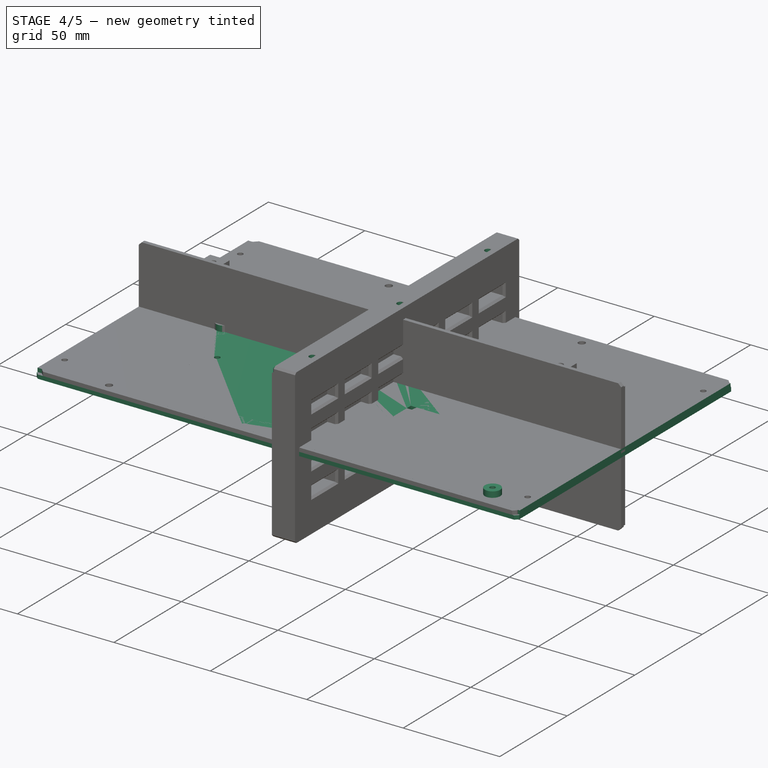
[diagram: stage 4 of 5 — iso view after this stage's code; geometry added in this stage tinted green]
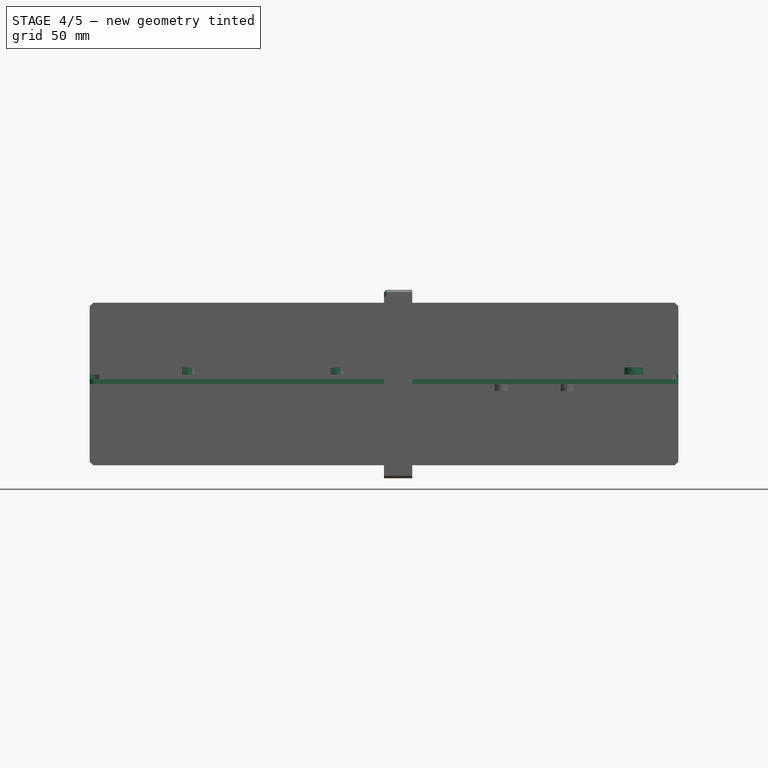
[diagram: stage 4 of 5 — front view after this stage's code; geometry added in this stage tinted green]
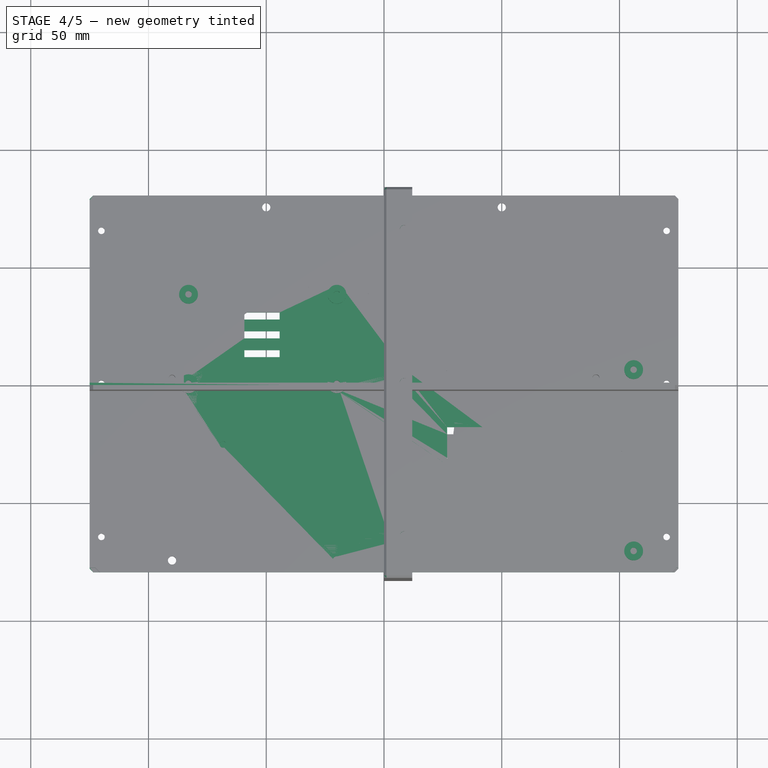
[diagram: stage 4 of 5 — top view after this stage's code; geometry added in this stage tinted green]
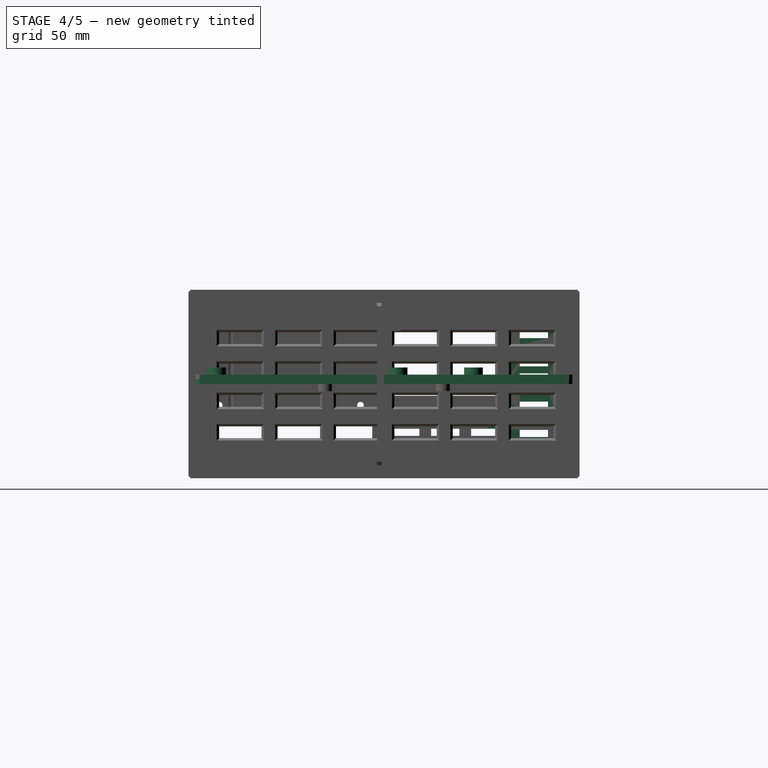
[diagram: stage 4 of 5 — right view after this stage's code; geometry added in this stage tinted green]
FEATURE [Sketcher::SketchObject] Sketch
  FullyConstrained = false
  MapMode = 5
  Support = -> [XY_Plane]
  sketch-geometry (52):
    g0: LineSegment StartX=-86.5424 StartY=49.9671 StartZ=0 EndX=-14.5424 EndY=49.9671 EndZ=0
    g1: LineSegment StartX=-14.5424 StartY=49.9671 StartZ=0 EndX=-14.5424 EndY=4.96706 EndZ=0
    g2: LineSegment StartX=-14.5424 StartY=4.96706 StartZ=0 EndX=-86.5424 EndY=4.96706 EndZ=0
    g3: LineSegment StartX=-86.5424 StartY=4.96706 StartZ=0 EndX=-86.5424 EndY=49.9671 EndZ=0
    g4: LineSegment StartX=25.4911 StartY=34.3238 StartZ=0 EndX=135.491 EndY=34.3238 EndZ=0
    g5: LineSegment StartX=135.491 StartY=34.3238 StartZ=0 EndX=135.491 EndY=-50.6762 EndZ=0
    g6: LineSegment StartX=135.491 StartY=-50.6762 StartZ=0 EndX=25.4911 EndY=-50.6762 EndZ=0
    g7: LineSegment StartX=25.4911 StartY=-50.6762 StartZ=0 EndX=25.4911 EndY=34.3238 EndZ=0
    g8: LineSegment StartX=49.4911 StartY=-35.6762 StartZ=0 EndX=61.4911 EndY=-35.6762 EndZ=0
    g9: LineSegment StartX=61.4911 StartY=-35.6762 StartZ=0 EndX=61.4911 EndY=-50.6762 EndZ=0
    g10: LineSegment StartX=61.4911 StartY=-50.6762 StartZ=0 EndX=49.4911 EndY=-50.6762 EndZ=0
    g11: LineSegment StartX=49.4911 StartY=-50.6762 StartZ=0 EndX=49.4911 EndY=-35.6762 EndZ=0
    g12: LineSegment StartX=67.9911 StartY=-35.6762 StartZ=0 EndX=82.9911 EndY=-35.6762 EndZ=0
    g13: LineSegment StartX=82.9911 StartY=-35.6762 StartZ=0 EndX=82.9911 EndY=-50.6762 EndZ=0
    g14: LineSegment StartX=82.9911 StartY=-50.6762 StartZ=0 EndX=67.9911 EndY=-50.6762 EndZ=0
    g15: LineSegment StartX=67.9911 StartY=-50.6762 StartZ=0 EndX=67.9911 EndY=-35.6762 EndZ=0
    g16: Circle CenterX=29.5661 CenterY=29.9738 CenterZ=0 NormalX=0 NormalY=0 NormalZ=1 AngleXU=0 Radius=1.75
    g17: Circle CenterX=131.416 CenterY=29.9738 CenterZ=0 NormalX=0 NormalY=0 NormalZ=1 AngleXU=0 Radius=1.75
    g18: Circle CenterX=29.5661 CenterY=-46.3262 CenterZ=0 NormalX=0 NormalY=0 NormalZ=1 AngleXU=0 Radius=1.75
    g19: Circle CenterX=131.416 CenterY=-46.3262 CenterZ=0 NormalX=0 NormalY=0 NormalZ=1 AngleXU=0 Radius=1.75
    g20: Circle CenterX=-82.0424 CenterY=46.4671 CenterZ=0 NormalX=0 NormalY=0 NormalZ=1 AngleXU=0 Radius=1.75
    g21: Circle CenterX=-19.0424 CenterY=46.4671 CenterZ=0 NormalX=0 NormalY=0 NormalZ=1 AngleXU=0 Radius=1.75
    g22: Circle CenterX=-82.0424 CenterY=8.46706 CenterZ=0 NormalX=0 NormalY=0 NormalZ=1 AngleXU=0 Radius=1.75
    g23: Circle CenterX=-19.0424 CenterY=8.46706 CenterZ=0 NormalX=0 NormalY=0 NormalZ=1 AngleXU=0 Radius=1.75
    g24: LineSegment StartX=80.4911 StartY=34.3238 StartZ=0 EndX=80.4911 EndY=-50.6762 EndZ=0
    g25: LineSegment StartX=25.4911 StartY=-8.17615 StartZ=0 EndX=135.491 EndY=-8.17615 EndZ=0
    g26: LineSegment StartX=-50.5424 StartY=4.96706 StartZ=0 EndX=-50.5424 EndY=49.9671 EndZ=0
    g27: LineSegment StartX=-86.5424 StartY=27.4671 StartZ=0 EndX=-14.5424 EndY=27.4671 EndZ=0
    g28: LineSegment StartX=-24.5424 StartY=17.4671 StartZ=0 EndX=-14.5424 EndY=17.4671 EndZ=0
    g29: LineSegment StartX=-14.5424 StartY=17.4671 StartZ=0 EndX=-14.5424 EndY=27.4671 EndZ=0
    g30: LineSegment StartX=-14.5424 StartY=27.4671 StartZ=0 EndX=-24.5424 EndY=27.4671 EndZ=0
    g31: LineSegment StartX=-24.5424 StartY=27.4671 StartZ=0 EndX=-24.5424 EndY=17.4671 EndZ=0
    g32: LineSegment StartX=-81.5424 StartY=32.4671 StartZ=0 EndX=-71.5424 EndY=32.4671 EndZ=0
    g33: LineSegment StartX=-71.5424 StartY=32.4671 StartZ=0 EndX=-71.5424 EndY=22.4671 EndZ=0
    g34: LineSegment StartX=-71.5424 StartY=22.4671 StartZ=0 EndX=-81.5424 EndY=22.4671 EndZ=0
    g35: LineSegment StartX=-81.5424 StartY=22.4671 StartZ=0 EndX=-81.5424 EndY=32.4671 EndZ=0
    g36: LineSegment StartX=-100.377 StartY=89.1721 StartZ=0 EndX=139.623 EndY=89.1721 EndZ=0
    g37: LineSegment StartX=139.623 StartY=89.1721 StartZ=0 EndX=139.623 EndY=59.1721 EndZ=0
    g38: LineSegment StartX=139.623 StartY=59.1721 StartZ=0 EndX=-100.377 EndY=59.1721 EndZ=0
    g39: LineSegment StartX=-100.377 StartY=59.1721 StartZ=0 EndX=-100.377 EndY=89.1721 EndZ=0
    g40: LineSegment StartX=-96.5075 StartY=-1.10795 StartZ=0 EndX=3.49248 EndY=-1.10795 EndZ=0
    g41: LineSegment StartX=3.49248 StartY=-1.10795 StartZ=0 EndX=3.49248 EndY=-54.108 EndZ=0
    g42: LineSegment StartX=3.49248 StartY=-54.108 StartZ=0 EndX=-96.5075 EndY=-54.108 EndZ=0
    g43: LineSegment StartX=-96.5075 StartY=-54.108 StartZ=0 EndX=-96.5075 EndY=-1.10795 EndZ=0
    g44: LineSegment StartX=40.4911 StartY=31.3238 StartZ=0 EndX=120.491 EndY=31.3238 EndZ=0
    g45: LineSegment StartX=120.491 StartY=31.3238 StartZ=0 EndX=120.491 EndY=21.3238 EndZ=0
    g46: LineSegment StartX=120.491 StartY=21.3238 StartZ=0 EndX=40.4911 EndY=21.3238 EndZ=0
    g47: LineSegment StartX=40.4911 StartY=21.3238 StartZ=0 EndX=40.4911 EndY=31.3238 EndZ=0
    g48: LineSegment StartX=-125 StartY=80 StartZ=0 EndX=125 EndY=80 EndZ=0
    g49: LineSegment StartX=125 StartY=80 StartZ=0 EndX=125 EndY=-80 EndZ=0
    g50: LineSegment StartX=125 StartY=-80 StartZ=0 EndX=-125 EndY=-80 EndZ=0
    g51: LineSegment StartX=-125 StartY=-80 StartZ=0 EndX=-125 EndY=80 EndZ=0
  constraints (138):
    c: Coincident(g0,g1)
    c: Coincident(g1,g2)
    c: Coincident(g2,g3)
    c: Coincident(g3,g0)
    c: Horizontal(g0)
    c: Horizontal(g2)
    c: Vertical(g1)
    c: Vertical(g3)
    c: Distance(g0) = 72
    c: Distance(g1) = 45
    c: Coincident(g4,g5)
    c: Coincident(g5,g6)
    c: Coincident(g6,g7)
    c: Coincident(g7,g4)
    c: Horizontal(g4)
    c: Horizontal(g6)
    c: Vertical(g5)
    c: Vertical(g7)
    c: Distance(g4) = 110
    c: Distance(g5) = 85
    c: Coincident(g8,g9)
    c: Coincident(g9,g10)
    c: Coincident(g10,g11)
    c: Coincident(g11,g8)
    c: Horizontal(g8)
    c: Horizontal(g10)
    c: Vertical(g9)
    c: Vertical(g11)
    c: Coincident(g12,g13)
    c: Coincident(g13,g14)
    c: Coincident(g14,g15)
    c: Coincident(g15,g12)
    c: Horizontal(g12)
    c: Horizontal(g14)
    c: Vertical(g13)
    c: Vertical(g15)
    c: Distance(g6,g10) = 24
    c: Distance(g9,g6) = 36
    c: PointOnObject(g9,g6)
    c: DistanceX(g6,g14) = 42.5
    c: PointOnObject(g14,g6)
    c: Distance(g13,g6) = 57.5
    c: Equal(g9,g15)
    c: Distance(g13) = 15
    c: Diameter(g20) = 3.5
    c: Equal(g20,g22)
    c: Equal(g20,g21)
    c: Equal(g20,g23)
    c: Equal(g20,g16)
    c: Equal(g20,g18)
    c: Equal(g20,g17)
    c: Equal(g20,g19)
    c: PointOnObject(g24,g6)
    c: Vertical(g24)
    c: PointOnObject(g25,g7)
    c: Horizontal(g25)
    c: PointOnObject(g26,g2)
    c: PointOnObject(g27,g3)
    c: Horizontal(g27)
    c: Vertical(g26)
    c: Symmetric(g0,g0,g26)
    c: Symmetric(g0,g1,g27)
    c: Symmetric(g5,g4,g25)
    c: Symmetric(g4,g4,g24)
    c: Symmetric(g17,g16,g24)
    c: Distance(g16,g17) = 101.85
    c: Symmetric(g19,g17,g25)
    c: Distance(g17,g19) = 76.3
    c: DistanceX(g16,g18) = 0
    c: DistanceY(g19,g18) = 0
    c: Symmetric(g20,g21,g26)
    c: Symmetric(g23,g21,g27)
    c: Symmetric(g22,g20,g27)
    c: Distance(g21,g23) = 38
    c: Distance(g21,g20) = 63
    c: Coincident(g28,g29)
    c: Coincident(g29,g30)
    c: Coincident(g30,g31)
    c: Coincident(g31,g28)
    c: Horizontal(g28)
    c: Horizontal(g30)
    c: Vertical(g29)
    c: Vertical(g31)
    c: Coincident(g32,g33)
    c: Coincident(g33,g34)
    c: Coincident(g34,g35)
    c: Coincident(g35,g32)
    c: Horizontal(g32)
    c: Horizontal(g34)
    c: Vertical(g35)
    c: Symmetric(g33,g32,g27)
    c: Distance(g33) = 10
    c: Distance(g32) = 10
    c: Distance(g32,g3) = 5
    c: Coincident(g29,g27)
    c: Distance(g28) = 10
    c: Distance(g31) = 10
    c: Coincident(g36,g37)
    c: Coincident(g37,g38)
    c: Coincident(g38,g39)
    c: Coincident(g39,g36)
    c: Horizontal(g36)
    c: Horizontal(g38)
    c: Vertical(g37)
    c: Vertical(g39)
    c: Distance(g36) = 240
    c: Distance(g37) = 30
    c: Coincident(g40,g41)
    c: Coincident(g41,g42)
    c: Coincident(g42,g43)
    c: Coincident(g43,g40)
    c: Horizontal(g40)
    c: Horizontal(g42)
    c: Vertical(g41)
    c: Vertical(g43)
    c: Distance(g40) = 100
    c: Distance(g41) = 53
    c: Coincident(g44,g45)
    c: Coincident(g45,g46)
    c: Coincident(g46,g47)
    c: Coincident(g47,g44)
    c: Horizontal(g46)
    c: Vertical(g45)
    c: Vertical(g47)
    c: Symmetric(g44,g44,g24)
    c: Distance(g45) = 10
    c: Distance(g44) = 80
    c: Distance(g44,g4) = 3
    c: Coincident(g48,g49)
    c: Coincident(g49,g50)
    c: Coincident(g50,g51)
    c: Coincident(g51,g48)
    c: Horizontal(g50)
    c: Vertical(g49)
    c: Distance(g49) = 160
    c: Distance(g48) = 250
    c: Symmetric(g48,g48,g-2)
    c: Symmetric(g50,g48,g-1)
FEATURE [PartDesign::Pad] Pad
  Direction = (1,1,1)
  Length = 4
  Length2 = 100
  Profile = -> Sketch
  Type = 0
FEATURE [Sketcher::SketchObject] Sketch001
  FullyConstrained = false
  MapMode = 5
  Placement = pos=(0,0,4) rot=(0,0,1;0rad)
  Support = -> [Pad]
  sketch-geometry (60):
    g0: LineSegment StartX=-87.5 StartY=41.4585 StartZ=0 EndX=-15.5 EndY=41.4585 EndZ=0
    g1: LineSegment StartX=-15.5 StartY=41.4585 StartZ=0 EndX=-15.5 EndY=-3.45847 EndZ=0
    g2: LineSegment StartX=-15.5 StartY=-3.45847 StartZ=0 EndX=-87.5 EndY=-3.45847 EndZ=0
    g3: LineSegment StartX=-87.5 StartY=-3.45847 StartZ=0 EndX=-87.5 EndY=41.4585 EndZ=0
    g4: LineSegment StartX=0 StartY=10 StartZ=0 EndX=110 EndY=10 EndZ=0
    g5: LineSegment StartX=110 StartY=10 StartZ=0 EndX=110 EndY=-75 EndZ=0
    g6: LineSegment StartX=110 StartY=-75 StartZ=0 EndX=0 EndY=-75 EndZ=0
    g7: LineSegment StartX=0 StartY=-75 StartZ=0 EndX=0 EndY=10 EndZ=0
    g8: LineSegment StartX=24 StartY=-60 StartZ=0 EndX=36 EndY=-60 EndZ=0
    g9: LineSegment StartX=36 StartY=-60 StartZ=0 EndX=36 EndY=-75 EndZ=0
    g10: LineSegment StartX=36 StartY=-75 StartZ=0 EndX=24 EndY=-75 EndZ=0
    g11: LineSegment StartX=24 StartY=-75 StartZ=0 EndX=24 EndY=-60 EndZ=0
    g12: LineSegment StartX=42.5 StartY=-60 StartZ=0 EndX=57.5 EndY=-60 EndZ=0
    g13: LineSegment StartX=57.5 StartY=-60 StartZ=0 EndX=57.5 EndY=-75 EndZ=0
    g14: LineSegment StartX=57.5 StartY=-75 StartZ=0 EndX=42.5 EndY=-75 EndZ=0
    g15: LineSegment StartX=42.5 StartY=-75 StartZ=0 EndX=42.5 EndY=-60 EndZ=0
    g16: Circle CenterX=4 CenterY=6 CenterZ=0 NormalX=0 NormalY=0 NormalZ=1 AngleXU=0 Radius=1.75
    g17: Circle CenterX=106 CenterY=6 CenterZ=0 NormalX=0 NormalY=0 NormalZ=1 AngleXU=0 Radius=1.75
    g18: Circle CenterX=4 CenterY=-71 CenterZ=0 NormalX=0 NormalY=0 NormalZ=1 AngleXU=0 Radius=1.75
    g19: Circle CenterX=106 CenterY=-71 CenterZ=0 NormalX=0 NormalY=0 NormalZ=1 AngleXU=0 Radius=1.75
    g20: Circle CenterX=-83 CenterY=38 CenterZ=0 NormalX=0 NormalY=0 NormalZ=1 AngleXU=0 Radius=1.75
    g21: Circle CenterX=-20 CenterY=38 CenterZ=0 NormalX=0 NormalY=0 NormalZ=1 AngleXU=0 Radius=1.75
    g22: Circle CenterX=-83 CenterY=-3.5e-15 CenterZ=0 NormalX=0 NormalY=0 NormalZ=1 AngleXU=0 Radius=1.75
    g23: Circle CenterX=-20 CenterY=0 CenterZ=0 NormalX=0 NormalY=0 NormalZ=1 AngleXU=0 Radius=1.75
    g24: LineSegment StartX=55 StartY=10 StartZ=0 EndX=55 EndY=-75 EndZ=0
    g25: LineSegment StartX=3.9e-15 StartY=-32.5 StartZ=0 EndX=110 EndY=-32.5 EndZ=0
    g26: LineSegment StartX=-51.5 StartY=-3.45847 StartZ=0 EndX=-51.5 EndY=41.4585 EndZ=0
    g27: LineSegment StartX=-87.5 StartY=19 StartZ=0 EndX=-15.5 EndY=19 EndZ=0
    g28: LineSegment StartX=-25.5 StartY=9 StartZ=0 EndX=-15.5 EndY=9 EndZ=0
    g29: LineSegment StartX=-15.5 StartY=9 StartZ=0 EndX=-15.5 EndY=19 EndZ=0
    g30: LineSegment StartX=-15.5 StartY=19 StartZ=0 EndX=-25.5 EndY=19 EndZ=0
    g31: LineSegment StartX=-25.5 StartY=19 StartZ=0 EndX=-25.5 EndY=9 EndZ=0
    g32: LineSegment StartX=-82.5 StartY=24 StartZ=0 EndX=-72.5 EndY=24 EndZ=0
    g33: LineSegment StartX=-72.5 StartY=24 StartZ=0 EndX=-72.5 EndY=14 EndZ=0
    g34: LineSegment StartX=-72.5 StartY=14 StartZ=0 EndX=-82.5 EndY=14 EndZ=0
    g35: LineSegment StartX=-82.5 StartY=14 StartZ=0 EndX=-82.5 EndY=24 EndZ=0
    g36: LineSegment StartX=-120.694 StartY=75.1603 StartZ=0 EndX=119.306 EndY=75.1603 EndZ=0
    g37: LineSegment StartX=119.306 StartY=75.1603 StartZ=0 EndX=119.306 EndY=45.1603 EndZ=0
    g38: LineSegment StartX=119.306 StartY=45.1603 StartZ=0 EndX=-120.694 EndY=45.1603 EndZ=0
    g39: LineSegment StartX=-120.694 StartY=45.1603 StartZ=0 EndX=-120.694 EndY=75.1603 EndZ=0
    g40: LineSegment StartX=-121.323 StartY=-10.2354 StartZ=0 EndX=-21.3228 EndY=-10.2354 EndZ=0
    g41: LineSegment StartX=-21.3228 StartY=-10.2354 StartZ=0 EndX=-21.3228 EndY=-63.2354 EndZ=0
    g42: LineSegment StartX=-21.3228 StartY=-63.2354 StartZ=0 EndX=-121.323 EndY=-63.2354 EndZ=0
    g43: LineSegment StartX=-121.323 StartY=-63.2354 StartZ=0 EndX=-121.323 EndY=-10.2354 EndZ=0
    g44: LineSegment StartX=15 StartY=7 StartZ=0 EndX=95 EndY=7 EndZ=0
    g45: LineSegment StartX=95 StartY=7 StartZ=0 EndX=95 EndY=-3 EndZ=0
    g46: LineSegment StartX=95 StartY=-3 StartZ=0 EndX=15 EndY=-3 EndZ=0
    g47: LineSegment StartX=15 StartY=-3 StartZ=0 EndX=15 EndY=7 EndZ=0
    g48: LineSegment StartX=-125.107 StartY=95.65 StartZ=0 EndX=124.893 EndY=95.65 EndZ=0
    g49: LineSegment StartX=124.893 StartY=95.65 StartZ=0 EndX=124.893 EndY=-80.1453 EndZ=0
    g50: LineSegment StartX=124.893 StartY=-80.1453 StartZ=0 EndX=-125.107 EndY=-80.1453 EndZ=0
    g51: LineSegment StartX=-125.107 StartY=-80.1453 StartZ=0 EndX=-125.107 EndY=95.65 EndZ=0
    g52: Circle CenterX=4 CenterY=6 CenterZ=0 NormalX=0 NormalY=0 NormalZ=1 AngleXU=0 Radius=4
    g53: Circle CenterX=106 CenterY=6 CenterZ=0 NormalX=0 NormalY=0 NormalZ=1 AngleXU=0 Radius=4
    g54: Circle CenterX=106 CenterY=-71 CenterZ=0 NormalX=0 NormalY=0 NormalZ=1 AngleXU=0 Radius=4
    g55: Circle CenterX=4 CenterY=-71 CenterZ=0 NormalX=0 NormalY=0 NormalZ=1 AngleXU=0 Radius=4
    g56: Circle CenterX=-83 CenterY=38 CenterZ=0 NormalX=0 NormalY=0 NormalZ=1 AngleXU=0 Radius=4
    g57: Circle CenterX=-20 CenterY=38 CenterZ=0 NormalX=0 NormalY=0 NormalZ=1 AngleXU=0 Radius=4
    g58: Circle CenterX=-20 CenterY=0 CenterZ=0 NormalX=0 NormalY=0 NormalZ=1 AngleXU=0 Radius=4
    g59: Circle CenterX=-83 CenterY=-3.5e-15 CenterZ=0 NormalX=0 NormalY=0 NormalZ=1 AngleXU=0 Radius=4
  constraints (156):
    c: Coincident(g0,g1)
    c: Coincident(g1,g2)
    c: Coincident(g2,g3)
    c: Coincident(g3,g0)
    c: Horizontal(g0)
    c: Horizontal(g2)
    c: Vertical(g1)
    c: Vertical(g3)
    c: Distance(g0) = 72
    c: Coincident(g4,g5)
    c: Coincident(g5,g6)
    c: Coincident(g6,g7)
    c: Coincident(g7,g4)
    c: Horizontal(g4)
    c: Horizontal(g6)
    c: Vertical(g5)
    c: Vertical(g7)
    c: Distance(g4) = 110
    c: Distance(g5) = 85
    c: Coincident(g8,g9)
    c: Coincident(g9,g10)
    c: Coincident(g10,g11)
    c: Coincident(g11,g8)
    c: Horizontal(g8)
    c: Horizontal(g10)
    c: Vertical(g9)
    c: Vertical(g11)
    c: Coincident(g12,g13)
    c: Coincident(g13,g14)
    c: Coincident(g14,g15)
    c: Coincident(g15,g12)
    c: Horizontal(g12)
    c: Horizontal(g14)
    c: Vertical(g13)
    c: Vertical(g15)
    c: Distance(g6,g10) = 24
    c: Distance(g9,g6) = 36
    c: PointOnObject(g9,g6)
    c: DistanceX(g6,g14) = 42.5
    c: PointOnObject(g14,g6)
    c: Distance(g13,g6) = 57.5
    c: Equal(g9,g15)
    c: Distance(g13) = 15
    c: Diameter(g20) = 3.5
    c: Equal(g20,g22)
    c: Equal(g20,g21)
    c: Equal(g20,g23)
    c: Equal(g20,g16)
    c: Equal(g20,g18)
    c: Equal(g20,g17)
    c: Equal(g20,g19)
    c: PointOnObject(g24,g6)
    c: Vertical(g24)
    c: PointOnObject(g25,g7)
    c: Horizontal(g25)
    c: PointOnObject(g26,g2)
    c: PointOnObject(g27,g3)
    c: Horizontal(g27)
    c: Vertical(g26)
    c: Symmetric(g0,g0,g26)
    c: Symmetric(g0,g1,g27)
    c: Symmetric(g5,g4,g25)
    c: Symmetric(g4,g4,g24)
    c: Symmetric(g17,g16,g24)
    c: Distance(g16,g17) = 102
    c: Symmetric(g19,g17,g25)
    c: DistanceX(g16,g18) = 0
    c: DistanceY(g19,g18) = 0
    c: Symmetric(g20,g21,g26)
    c: Symmetric(g23,g21,g27)
    c: Symmetric(g22,g20,g27)
    c: Distance(g21,g23) = 38
    c: Distance(g21,g20) = 63
    c: Coincident(g28,g29)
    c: Coincident(g29,g30)
    c: Coincident(g30,g31)
    c: Coincident(g31,g28)
    c: Horizontal(g28)
    c: Horizontal(g30)
    c: Vertical(g29)
    c: Vertical(g31)
    c: Coincident(g32,g33)
    c: Coincident(g33,g34)
    c: Coincident(g34,g35)
    c: Coincident(g35,g32)
    c: Horizontal(g32)
    c: Horizontal(g34)
    c: Vertical(g35)
    c: Symmetric(g33,g32,g27)
    c: Distance(g33) = 10
    c: Distance(g32) = 10
    c: Distance(g32,g3) = 5
    c: Coincident(g29,g27)
    c: Distance(g28) = 10
    c: Distance(g31) = 10
    c: Coincident(g36,g37)
    c: Coincident(g37,g38)
    c: Coincident(g38,g39)
    c: Coincident(g39,g36)
    c: Horizontal(g36)
    c: Horizontal(g38)
    c: Vertical(g37)
    c: Vertical(g39)
    c: Distance(g36) = 240
    c: Distance(g37) = 30
    c: Coincident(g40,g41)
    c: Coincident(g41,g42)
    c: Coincident(g42,g43)
    c: Coincident(g43,g40)
    c: Horizontal(g40)
    c: Horizontal(g42)
    c: Vertical(g41)
    c: Vertical(g43)
    c: Distance(g40) = 100
    c: Distance(g41) = 53
    c: Coincident(g44,g45)
    c: Coincident(g45,g46)
    c: Coincident(g46,g47)
    c: Coincident(g47,g44)
    c: Horizontal(g46)
    c: Vertical(g45)
    c: Vertical(g47)
    c: Symmetric(g44,g44,g24)
    c: Distance(g45) = 10
    c: Distance(g44) = 80
    c: Distance(g44,g4) = 3
    c: Coincident(g48,g49)
    c: Coincident(g49,g50)
    c: Coincident(g50,g51)
    c: Coincident(g51,g48)
    c: Horizontal(g48)
    c: Horizontal(g50)
    c: Vertical(g49)
    c: Vertical(g51)
    c: Distance(g48) = 250
    c: Coincident(g52,g16)
    c: Coincident(g53,g17)
    c: Coincident(g54,g19)
    c: Coincident(g55,g18)
    c: Coincident(g56,g20)
    c: Coincident(g57,g21)
    c: Coincident(g58,g23)
    c: Coincident(g59,g22)
    c: Diameter(g54) = 8
    c: Equal(g54,g53)
    c: Equal(g54,g52)
    c: Equal(g54,g55)
    c: Equal(g54,g58)
    c: Equal(g54,g57)
    c: Equal(g54,g56)
    c: Equal(g54,g59)
    c: DistanceY(g5) = -75
    c: DistanceX(g5) = 110
    c: DistanceX(g57) = -20
    c: Distance(g53,g54) = 77
    c: PointOnObject(g58,g-1)
FEATURE [Sketcher::SketchObject] Sketch003  label="reference"
  FullyConstrained = false
  MapMode = 5
  Placement = pos=(0,0,0) rot=(0.57735,0.57735,0.57735;2.0944rad)
  Support = -> [YZ_Plane001]
  sketch-geometry (4):
    g0: LineSegment StartX=-80.0312 StartY=59.7173 StartZ=0 EndX=-51.0312 EndY=59.7173 EndZ=0
    g1: LineSegment StartX=-51.0312 StartY=59.7173 StartZ=0 EndX=-51.0312 EndY=11.7173 EndZ=0
    g2: LineSegment StartX=-51.0312 StartY=11.7173 StartZ=0 EndX=-80.0312 EndY=11.7173 EndZ=0
    g3: LineSegment StartX=-80.0312 StartY=11.7173 StartZ=0 EndX=-80.0312 EndY=59.7173 EndZ=0
  constraints (10):
    c: Coincident(g0,g1)
    c: Coincident(g1,g2)
    c: Coincident(g2,g3)
    c: Coincident(g3,g0)
    c: Horizontal(g0)
    c: Horizontal(g2)
    c: Vertical(g1)
    c: Vertical(g3)
    c: Distance(g0) = 29
    c: Distance(g3) = 48
FEATURE [PartDesign::Pad] Pad001
  BaseFeature = -> Pad
  Direction = (1,1,1)
  Length = 3
  Length2 = 100
  Profile = -> Sketch001
  Type = 0
FEATURE [Sketcher::SketchObject] Sketch002
  ExternalGeometry = -> [Pad001]
  FullyConstrained = true
  MapMode = 5
  Placement = pos=(0,0,7) rot=(0,0,1;0rad)
  sketch-geometry (8):
    g0: Circle CenterX=-83 CenterY=38 CenterZ=0 NormalX=0 NormalY=0 NormalZ=1 AngleXU=0 Radius=1.4
    g1: Circle CenterX=-20 CenterY=38 CenterZ=0 NormalX=0 NormalY=0 NormalZ=1 AngleXU=0 Radius=1.4
    g2: Circle CenterX=-83 CenterY=-3.5e-15 CenterZ=0 NormalX=0 NormalY=0 NormalZ=1 AngleXU=0 Radius=1.4
    g3: Circle CenterX=-20 CenterY=0 CenterZ=0 NormalX=0 NormalY=0 NormalZ=1 AngleXU=0 Radius=1.4
    g4: Circle CenterX=4 CenterY=6 CenterZ=0 NormalX=0 NormalY=0 NormalZ=1 AngleXU=0 Radius=1.4
    g5: Circle CenterX=106 CenterY=6 CenterZ=0 NormalX=0 NormalY=0 NormalZ=1 AngleXU=0 Radius=1.4
    g6: Circle CenterX=106 CenterY=-71 CenterZ=0 NormalX=0 NormalY=0 NormalZ=1 AngleXU=0 Radius=1.4
    g7: Circle CenterX=4 CenterY=-71 CenterZ=0 NormalX=0 NormalY=0 NormalZ=1 AngleXU=0 Radius=1.4
  constraints (12):
    c: Diameter(g0) = 2.8
    c: Equal(g0,g2)
    c: Equal(g0,g1)
    c: Equal(g0, g3-g7) x5
    c: Coincident(g7,g-10)
    c: Coincident(g4,g-7)
    c: Coincident(g5,g-8)
    c: Coincident(g6,g-9)
    c: Coincident(g-3,g0)
    c: Coincident(g2,g-6)
    c: Coincident(g1,g-4)
    c: Coincident(g3,g-5)
FEATURE [PartDesign::Pocket] Pocket
  BaseFeature = -> Pad001
  Length = 5
  Length2 = 100
  Profile = -> Sketch002
  Type = 0
FEATURE [Sketcher::SketchObject] Sketch007  label="MainPanel"
  FullyConstrained = true
  MapMode = 5
  Placement = pos=(0,0,0) rot=(1,0,0;1.5708rad)
  Support = -> [XZ_Plane003]
  sketch-geometry (4):
    g0: LineSegment StartX=-125 StartY=32.5 StartZ=0 EndX=125 EndY=32.5 EndZ=0
    g1: LineSegment StartX=125 StartY=32.5 StartZ=0 EndX=125 EndY=-32.5 EndZ=0
    g2: LineSegment StartX=125 StartY=-32.5 StartZ=0 EndX=-125 EndY=-32.5 EndZ=0
    g3: LineSegment StartX=-125 StartY=-32.5 StartZ=0 EndX=-125 EndY=32.5 EndZ=0
  constraints (11):
    c: Coincident(g0,g1)
    c: Coincident(g1,g2)
    c: Coincident(g2,g3)
    c: Coincident(g3,g0)
    c: Horizontal(g0)
    c: Horizontal(g2)
    c: Vertical(g1)
    c: Vertical(g3)
    c: Distance(g1) = 65
    c: Distance(g0) = 250
    c: Symmetric(g0,g2,g-1)
FEATURE [PartDesign::Pad] Pad004
  Direction = (1,1,1)
  Length = 3
  Length2 = 100
  Placement = pos=(0,0,0) rot=(1,0,0;1.5708rad)
  Profile = -> Sketch007
  Type = 0
FEATURE [Sketcher::SketchObject] Sketch021
  FullyConstrained = false
  MapMode = 5
  Placement = pos=(0,0,7) rot=(0,0,1;0rad)
  sketch-geometry (4):
    g0: LineSegment StartX=-5.58191 StartY=14.6169 StartZ=0 EndX=116.05 EndY=14.6169 EndZ=0
    g1: LineSegment StartX=116.05 StartY=14.6169 StartZ=0 EndX=116.05 EndY=-73.9848 EndZ=0
    g2: LineSegment StartX=116.05 StartY=-73.9848 StartZ=0 EndX=-5.58191 EndY=-73.9848 EndZ=0
    g3: LineSegment StartX=-5.58191 StartY=-73.9848 StartZ=0 EndX=-5.58191 EndY=14.6169 EndZ=0
  constraints (8):
    c: Coincident(g0,g1)
    c: Coincident(g1,g2)
    c: Coincident(g2,g3)
    c: Coincident(g3,g0)
    c: Horizontal(g0)
    c: Horizontal(g2)
    c: Vertical(g1)
    c: Vertical(g3)
FEATURE [Sketcher::SketchObject] Sketch019
  FullyConstrained = false
  MapMode = 5
  Placement = pos=(0,0,4) rot=(0,0,1;0rad)
  Support = -> [Pocket]
  sketch-geometry (3):
    g0: Circle CenterX=-110 CenterY=29.3395 CenterZ=0 NormalX=0 NormalY=0 NormalZ=1 AngleXU=0 Radius=1.4
    g1: Circle CenterX=69.6861 CenterY=26.5639 CenterZ=0 NormalX=0 NormalY=0 NormalZ=1 AngleXU=0 Radius=1.4
    g2: Circle CenterX=-68.3728 CenterY=-25.761 CenterZ=0 NormalX=0 NormalY=0 NormalZ=1 AngleXU=0 Radius=1.4
  constraints (4):
    c: Diameter(g0) = 2.8
    c: Equal(g0,g1)
    c: Diameter(g2) = 2.8
    c: DistanceX(g0) = -110
FEATURE [PartDesign::Pocket] Pocket009
  BaseFeature = -> Pocket
  Length = 2
  Length2 = 100
  Profile = -> Sketch019
  Type = 0
FEATURE [Sketcher::SketchObject] Sketch022
  FullyConstrained = false
  MapMode = 5
  Placement = pos=(0,0,4) rot=(0,0,1;0rad)
  Support = -> [Pocket009]
  sketch-geometry (49):
    g0: Circle CenterX=-120 CenterY=65 CenterZ=0 NormalX=0 NormalY=0 NormalZ=1 AngleXU=0 Radius=1.4
    g1: Circle CenterX=-120 CenterY=-65 CenterZ=0 NormalX=0 NormalY=0 NormalZ=1 AngleXU=0 Radius=1.4
    g2: Circle CenterX=120 CenterY=65 CenterZ=0 NormalX=0 NormalY=0 NormalZ=1 AngleXU=0 Radius=1.4
    g3: Circle CenterX=120 CenterY=-65 CenterZ=0 NormalX=0 NormalY=0 NormalZ=1 AngleXU=0 Radius=1.4
    g4: Circle CenterX=-50 CenterY=75 CenterZ=0 NormalX=0 NormalY=0 NormalZ=1 AngleXU=0 Radius=1.75
    g5: Circle CenterX=50 CenterY=75 CenterZ=0 NormalX=0 NormalY=0 NormalZ=1 AngleXU=0 Radius=1.75
    g6: Circle CenterX=-90 CenterY=-75 CenterZ=0 NormalX=0 NormalY=0 NormalZ=1 AngleXU=0 Radius=1.75
    g7: Circle CenterX=-20 CenterY=-75 CenterZ=0 NormalX=0 NormalY=0 NormalZ=1 AngleXU=0 Radius=1.75
    g8: LineSegment StartX=26.7977 StartY=-18.3916 StartZ=0 EndX=41.7977 EndY=-18.3916 EndZ=0
    g9: LineSegment StartX=41.7977 StartY=-18.3916 StartZ=0 EndX=41.7977 EndY=-21.3916 EndZ=0
    g10: LineSegment StartX=41.7977 StartY=-21.3916 StartZ=0 EndX=26.7977 EndY=-21.3916 EndZ=0
    g11: LineSegment StartX=26.7977 StartY=-21.3916 StartZ=0 EndX=26.7977 EndY=-18.3916 EndZ=0
    g12: LineSegment StartX=26.7977 StartY=-31.3916 StartZ=0 EndX=41.7977 EndY=-31.3916 EndZ=0
    g13: LineSegment StartX=41.7977 StartY=-31.3916 StartZ=0 EndX=41.7977 EndY=-34.3916 EndZ=0
    g14: LineSegment StartX=41.7977 StartY=-34.3916 StartZ=0 EndX=26.7977 EndY=-34.3916 EndZ=0
    g15: LineSegment StartX=26.7977 StartY=-34.3916 StartZ=0 EndX=26.7977 EndY=-31.3916 EndZ=0
    g16: LineSegment StartX=26.7977 StartY=-44.3916 StartZ=0 EndX=41.7977 EndY=-44.3916 EndZ=0
    g17: LineSegment StartX=41.7977 StartY=-44.3916 StartZ=0 EndX=41.7977 EndY=-47.3916 EndZ=0
    g18: LineSegment StartX=41.7977 StartY=-47.3916 StartZ=0 EndX=26.7977 EndY=-47.3916 EndZ=0
    g19: LineSegment StartX=26.7977 StartY=-47.3916 StartZ=0 EndX=26.7977 EndY=-44.3916 EndZ=0
    g20: LineSegment StartX=71.7977 StartY=-18.3916 StartZ=0 EndX=86.7977 EndY=-18.3916 EndZ=0
    g21: LineSegment StartX=86.7977 StartY=-18.3916 StartZ=0 EndX=86.7977 EndY=-21.3916 EndZ=0
    g22: LineSegment StartX=86.7977 StartY=-21.3916 StartZ=0 EndX=71.7977 EndY=-21.3916 EndZ=0
    g23: LineSegment StartX=71.7977 StartY=-21.3916 StartZ=0 EndX=71.7977 EndY=-18.3916 EndZ=0
    g24: LineSegment StartX=71.7977 StartY=-31.3916 StartZ=0 EndX=86.7977 EndY=-31.3916 EndZ=0
    g25: LineSegment StartX=86.7977 StartY=-31.3916 StartZ=0 EndX=86.7977 EndY=-34.3916 EndZ=0
    g26: LineSegment StartX=86.7977 StartY=-34.3916 StartZ=0 EndX=71.7977 EndY=-34.3916 EndZ=0
    g27: LineSegment StartX=71.7977 StartY=-34.3916 StartZ=0 EndX=71.7977 EndY=-31.3916 EndZ=0
    g28: LineSegment StartX=71.7977 StartY=-44.3916 StartZ=0 EndX=86.7977 EndY=-44.3916 EndZ=0
    g29: LineSegment StartX=86.7977 StartY=-44.3916 StartZ=0 EndX=86.7977 EndY=-47.3916 EndZ=0
    g30: LineSegment StartX=86.7977 StartY=-47.3916 StartZ=0 EndX=71.7977 EndY=-47.3916 EndZ=0
    g31: LineSegment StartX=71.7977 StartY=-47.3916 StartZ=0 EndX=71.7977 EndY=-44.3916 EndZ=0
    g32: LineSegment StartX=-59.3112 StartY=30.3283 StartZ=0 EndX=-44.3112 EndY=30.3283 EndZ=0
    g33: LineSegment StartX=-44.3112 StartY=30.3283 StartZ=0 EndX=-44.3112 EndY=27.3283 EndZ=0
    g34: LineSegment StartX=-44.3112 StartY=27.3283 StartZ=0 EndX=-59.3112 EndY=27.3283 EndZ=0
    g35: LineSegment StartX=-59.3112 StartY=27.3283 StartZ=0 EndX=-59.3112 EndY=30.3283 EndZ=0
    g36: LineSegment StartX=-59.3112 StartY=22.3283 StartZ=0 EndX=-44.3112 EndY=22.3283 EndZ=0
    g37: LineSegment StartX=-44.3112 StartY=22.3283 StartZ=0 EndX=-44.3112 EndY=19.3283 EndZ=0
    g38: LineSegment StartX=-44.3112 StartY=19.3283 StartZ=0 EndX=-59.3112 EndY=19.3283 EndZ=0
    g39: LineSegment StartX=-59.3112 StartY=19.3283 StartZ=0 EndX=-59.3112 EndY=22.3283 EndZ=0
    g40: LineSegment StartX=-59.3112 StartY=14.3283 StartZ=0 EndX=-44.3112 EndY=14.3283 EndZ=0
    g41: LineSegment StartX=-44.3112 StartY=14.3283 StartZ=0 EndX=-44.3112 EndY=11.3283 EndZ=0
    g42: LineSegment StartX=-44.3112 StartY=11.3283 StartZ=0 EndX=-59.3112 EndY=11.3283 EndZ=0
    g43: LineSegment StartX=-59.3112 StartY=11.3283 StartZ=0 EndX=-59.3112 EndY=14.3283 EndZ=0
    g44: LineSegment StartX=-59.3112 StartY=39.1861 StartZ=0 EndX=-59.3112 EndY=3.92018 EndZ=0
    g45: LineSegment StartX=26.7977 StartY=-8.02324 StartZ=0 EndX=26.7977 EndY=-61.6972 EndZ=0
    g46: LineSegment StartX=71.7977 StartY=-8.28726 StartZ=0 EndX=71.7977 EndY=-63.1239 EndZ=0
    g47: Circle CenterX=-120 CenterY=0 CenterZ=0 NormalX=0 NormalY=0 NormalZ=1 AngleXU=0 Radius=1.4
    g48: Circle CenterX=120 CenterY=0 CenterZ=0 NormalX=0 NormalY=0 NormalZ=1 AngleXU=0 Radius=1.4
  constraints (135):
    c: Symmetric(g3,g1,g-2)
    c: Symmetric(g2,g0,g-2)
    c: Distance(g0,g2) = 240
    c: Diameter(g0) = 2.8
    c: Equal(g0,g1)
    c: Equal(g0,g2)
    c: Equal(g0,g3)
    c: Symmetric(g1,g0,g-1)
    c: Distance(g1,g0) = 130
    c: Diameter(g7) = 3.5
    c: Equal(g7,g6)
    c: DistanceY(g7) = -75
    c: Diameter(g4) = 3.5
    c: Equal(g4,g5)
    c: Symmetric(g5,g4,g-2)
    c: Distance(g5,g4) = 100
    c: DistanceY(g5) = 75
    c: Coincident(g8,g9)
    c: Coincident(g9,g10)
    c: Coincident(g10,g11)
    c: Coincident(g11,g8)
    c: Horizontal(g8)
    c: Horizontal(g10)
    c: Vertical(g9)
    c: Vertical(g11)
    c: Coincident(g12,g13)
    c: Coincident(g13,g14)
    c: Coincident(g14,g15)
    c: Coincident(g15,g12)
    c: Horizontal(g12)
    c: Horizontal(g14)
    c: Vertical(g13)
    c: Vertical(g15)
    c: Coincident(g16,g17)
    c: Coincident(g17,g18)
    c: Coincident(g18,g19)
    c: Coincident(g19,g16)
    c: Horizontal(g16)
    c: Horizontal(g18)
    c: Vertical(g17)
    c: Vertical(g19)
    c: Coincident(g20,g21)
    c: Coincident(g21,g22)
    c: Coincident(g22,g23)
    c: Coincident(g23,g20)
    c: Horizontal(g20)
    c: Horizontal(g22)
    c: Vertical(g21)
    c: Vertical(g23)
    c: Coincident(g24,g25)
    c: Coincident(g25,g26)
    c: Coincident(g26,g27)
    c: Coincident(g27,g24)
    c: Horizontal(g24)
    c: Horizontal(g26)
    c: Vertical(g25)
    c: Vertical(g27)
    c: Coincident(g28,g29)
    c: Coincident(g29,g30)
    c: Coincident(g30,g31)
    c: Coincident(g31,g28)
    c: Horizontal(g28)
    c: Horizontal(g30)
    c: Vertical(g29)
    c: Vertical(g31)
    c: Coincident(g32,g33)
    c: Coincident(g33,g34)
    c: Coincident(g34,g35)
    c: Coincident(g35,g32)
    c: Horizontal(g32)
    c: Horizontal(g34)
    c: Vertical(g33)
    c: Vertical(g35)
    c: Coincident(g36,g37)
    c: Coincident(g37,g38)
    c: Coincident(g38,g39)
    c: Coincident(g39,g36)
    c: Horizontal(g36)
    c: Horizontal(g38)
    c: Vertical(g37)
    c: Vertical(g39)
    c: Coincident(g40,g41)
    c: Coincident(g41,g42)
    c: Coincident(g42,g43)
    c: Coincident(g43,g40)
    c: Horizontal(g40)
    c: Horizontal(g42)
    c: Vertical(g41)
    c: Vertical(g43)
    c: Vertical(g44)
    c: Vertical(g45)
    c: Vertical(g46)
    c: PointOnObject(g32,g44)
    c: PointOnObject(g36,g44)
    c: PointOnObject(g40,g44)
    c: PointOnObject(g8,g45)
    c: PointOnObject(g12,g45)
    c: PointOnObject(g16,g45)
    c: PointOnObject(g20,g46)
    c: PointOnObject(g24,g46)
    c: PointOnObject(g28,g46)
    c: Equal(g9,g13)
    c: Equal(g13,g17)
    c: Equal(g17,g29)
    c: Equal(g29,g25)
    c: Equal(g25,g21)
    c: Equal(g21,g41)
    c: Equal(g41,g37)
    c: Equal(g37,g33)
    c: Distance(g33) = 3
    c: Equal(g16,g14)
    c: Equal(g14,g26)
    c: Equal(g26,g28)
    c: Equal(g28,g22)
    c: Equal(g22,g8)
    c: Equal(g8,g40)
    c: Equal(g40,g38)
    c: Equal(g38,g34)
    c: Distance(g34) = 15
    c: Distance(g36,g34) = 5
    c: Distance(g38,g40) = 5
    c: Distance(g16,g14) = 10
    c: Distance(g12,g10) = 10
    c: Distance(g24,g22) = 10
    c: Distance(g26,g28) = 10
    c: DistanceY(g8,g20) = 0
    c: Distance(g9,g22) = 30
    c: DistanceY(g6) = -75
    c: DistanceX(g7) = -20
    c: DistanceX(g6) = -90
    c: PointOnObject(g47,g-1)
    c: Diameter(g47) = 2.8
    c: Symmetric(g48,g47,g-1)
    c: Diameter(g48) = 2.8
    c: Distance(g48,g47) = 240
FEATURE [PartDesign::Pocket] Pocket010
  BaseFeature = -> Pocket009
  Length = 5
  Length2 = 100
  Profile = -> Sketch022
  Type = 0
FEATURE [Sketcher::SketchObject] Sketch023  label="AllScrewHoles"
  FullyConstrained = true
  MapMode = 5
  Placement = pos=(-1.12e-14,1.76e-14,40) rot=(0,0,-1;1.5708rad)
  Support = -> [Pocket008]
  sketch-geometry (3):
    g0: Circle CenterX=-65 CenterY=8.5 CenterZ=0 NormalX=0 NormalY=0 NormalZ=1 AngleXU=0 Radius=1.75
    g1: Circle CenterX=65 CenterY=8.5 CenterZ=0 NormalX=0 NormalY=0 NormalZ=1 AngleXU=0 Radius=1.75
    g2: Circle CenterX=0 CenterY=8.5 CenterZ=0 NormalX=0 NormalY=0 NormalZ=1 AngleXU=0 Radius=1.75
  constraints (8):
    c: DistanceY(g0) = 8.5
    c: Symmetric(g1,g0,g-2)
    c: Distance(g0,g1) = 130
    c: Diameter(g0) = 3.5
    c: Diameter(g1) = 3.5
    c: DistanceY(g2) = 8.5
    c: Diameter(g2) = 3.5
    c: PointOnObject(g2,g-2)
FEATURE [PartDesign::Pocket] Pocket011
  BaseFeature = -> Pocket008
  Length = 5
  Length2 = 100
  Placement = pos=(0,0,0) rot=(0.57735,0.57735,0.57735;2.0944rad)
  Profile = -> Sketch023
  Type = 1
FEATURE [Sketcher::SketchObject] Sketch038  label="ScrewHoles2"
  FullyConstrained = false
  MapMode = 5
  Placement = pos=(0,0,32.5) rot=(0,0,1;3.14159rad)
  Support = -> [Pad012]
  sketch-geometry (2):
    g0: Circle CenterX=-90 CenterY=-2 CenterZ=0 NormalX=0 NormalY=0 NormalZ=1 AngleXU=0 Radius=1.49666
    g1: Circle CenterX=90 CenterY=-2 CenterZ=0 NormalX=0 NormalY=0 NormalZ=1 AngleXU=0 Radius=1.36472
  constraints (3):
    c: Symmetric(g1,g0,g-2)
    c: DistanceX(g0) = -90
    c: DistanceY(g0) = -2
FEATURE [Sketcher::SketchObject] Sketch039  label="psuClearance"
  FullyConstrained = true
  MapMode = 5
  Placement = pos=(7,-9e-15,6e-15) rot=(0.57735,0.57735,0.57735;2.0944rad)
  sketch-geometry (4):
    g0: LineSegment StartX=44 StartY=26 StartZ=0 EndX=76 EndY=26 EndZ=0
    g1: LineSegment StartX=76 StartY=26 StartZ=0 EndX=76 EndY=-26 EndZ=0
    g2: LineSegment StartX=76 StartY=-26 StartZ=0 EndX=44 EndY=-26 EndZ=0
    g3: LineSegment StartX=44 StartY=-26 StartZ=0 EndX=44 EndY=26 EndZ=0
  constraints (11):
    c: Coincident(g0,g1)
    c: Coincident(g1,g2)
    c: Coincident(g2,g3)
    c: Coincident(g3,g0)
    c: Horizontal(g0)
    c: Horizontal(g2)
    c: Vertical(g3)
    c: Distance(g1) = 52
    c: Symmetric(g1,g0,g-1)
    c: Distance(g2) = 32
    c: DistanceX(g1) = 76
FEATURE [Sketcher::SketchObject] Sketch040  label="PsuClearance"
  FullyConstrained = true
  MapMode = 5
  Placement = pos=(0,0,0) rot=(0.57735,0.57735,-0.57735;4.18879rad)
  sketch-geometry (4):
    g0: LineSegment StartX=43 StartY=26 StartZ=0 EndX=75 EndY=26 EndZ=0
    g1: LineSegment StartX=75 StartY=26 StartZ=0 EndX=75 EndY=-26 EndZ=0
    g2: LineSegment StartX=75 StartY=-26 StartZ=0 EndX=43 EndY=-26 EndZ=0
    g3: LineSegment StartX=43 StartY=-26 StartZ=0 EndX=43 EndY=26 EndZ=0
  constraints (11):
    c: Coincident(g0,g1)
    c: Coincident(g1,g2)
    c: Coincident(g2,g3)
    c: Coincident(g3,g0)
    c: Horizontal(g0)
    c: Horizontal(g2)
    c: Vertical(g3)
    c: Distance(g0) = 32
    c: Distance(g1) = 52
    c: Symmetric(g1,g0,g-1)
    c: DistanceX(g1) = 75
FEATURE [Sketcher::SketchObject] Sketch041  label="stiffener"
  FullyConstrained = false
  MapMode = 5
  Placement = pos=(0,0,0) rot=(-1,0,0;1.5708rad)
  sketch-geometry (4):
    g0: LineSegment StartX=-105 StartY=2.5 StartZ=0 EndX=105 EndY=2.5 EndZ=0
    g1: LineSegment StartX=105 StartY=2.5 StartZ=0 EndX=105 EndY=-1.5 EndZ=0
    g2: LineSegment StartX=105 StartY=-1.5 StartZ=0 EndX=-105 EndY=-1.5 EndZ=0
    g3: LineSegment StartX=-105 StartY=-1.5 StartZ=0 EndX=-105 EndY=2.5 EndZ=0
  constraints (10):
    c: Coincident(g0,g1)
    c: Coincident(g1,g2)
    c: Coincident(g2,g3)
    c: Coincident(g3,g0)
    c: Horizontal(g0)
    c: Vertical(g1)
    c: Vertical(g3)
    c: Distance(g3) = 4
    c: Distance(g0) = 210
    c: Symmetric(g1,g2,g-2)
FEATURE [Sketcher::SketchObject] Sketch042  label="cornerPad"
  FullyConstrained = true
  MapMode = 5
  Placement = pos=(-125,0,0) rot=(0.707107,0,-0.707107;3.14159rad)
  sketch-geometry (4):
    g0: LineSegment StartX=32.5 StartY=3 StartZ=0 EndX=34.5 EndY=3 EndZ=0
    g1: LineSegment StartX=34.5 StartY=3 StartZ=0 EndX=34.5 EndY=1 EndZ=0
    g2: LineSegment StartX=34.5 StartY=1 StartZ=0 EndX=32.5 EndY=1 EndZ=0
    g3: LineSegment StartX=32.5 StartY=3 StartZ=0 EndX=32.5 EndY=1 EndZ=0
  constraints (12):
    c: Horizontal(g0)
    c: Coincident(g1,g0)
    c: Coincident(g2,g1)
    c: Coincident(g3,g0)
    c: Coincident(g3,g2)
    c: Vertical(g3)
    c: Distance(g0) = 2
    c: Distance(g1) = 2
    c: Vertical(g1)
    c: Equal(g3,g1)
    c: DistanceY(g0) = 3
    c: DistanceX(g0) = 32.5
FEATURE [Sketcher::SketchObject] Sketch043
  FullyConstrained = true
  MapMode = 5
  Placement = pos=(-125,0,0) rot=(0.57735,-0.57735,-0.57735;2.0944rad)
  Support = -> [Pocket010]
  sketch-geometry (8):
    g0: LineSegment StartX=80 StartY=4 StartZ=0 EndX=78 EndY=4 EndZ=0
    g1: LineSegment StartX=78 StartY=4 StartZ=0 EndX=78 EndY=2 EndZ=0
    g2: LineSegment StartX=78 StartY=2 StartZ=0 EndX=80 EndY=2 EndZ=0
    g3: LineSegment StartX=80 StartY=2 StartZ=0 EndX=80 EndY=4 EndZ=0
    g4: LineSegment StartX=-80 StartY=4 StartZ=0 EndX=-78 EndY=4 EndZ=0
    g5: LineSegment StartX=-78 StartY=4 StartZ=0 EndX=-78 EndY=2 EndZ=0
    g6: LineSegment StartX=-78 StartY=2 StartZ=0 EndX=-80 EndY=2 EndZ=0
    g7: LineSegment StartX=-80 StartY=2 StartZ=0 EndX=-80 EndY=4 EndZ=0
  constraints (24):
    c: Coincident(g0,g1)
    c: Coincident(g1,g2)
    c: Coincident(g2,g3)
    c: Coincident(g3,g0)
    c: Horizontal(g0)
    c: Horizontal(g2)
    c: Vertical(g1)
    c: Vertical(g3)
    c: Distance(g2) = 2
    c: Distance(g1) = 2
    c: DistanceY(g0) = 4
    c: DistanceX(g0) = 80
    c: Coincident(g4,g5)
    c: Coincident(g5,g6)
    c: Coincident(g6,g7)
    c: Coincident(g7,g4)
    c: Horizontal(g4)
    c: Horizontal(g6)
    c: Vertical(g5)
    c: Vertical(g7)
    c: Distance(g7) = 2
    c: Distance(g4) = 2
    c: DistanceY(g4) = 4
    c: DistanceX(g4) = -80
FEATURE [PartDesign::Pocket] Pocket025
  BaseFeature = -> Pocket010
  Length = 5
  Length2 = 100
  Profile = -> Sketch043
  Type = 1
FEATURE [PartDesign::Chamfer] Chamfer032
  Angle = 45
  Base = -> Pocket025 [Edge4,Edge2,Edge54,Edge66]
  BaseFeature = -> Pocket025
  ChamferType = 0
  FlipDirection = false
  Size = 1.5
  Size2 = 1
  SupportTransform = false
FEATURE [PartDesign::Body] Body  label="MainPanel250x160"
  Group = -> [Sketch,Pad,Sketch001,Sketch002,Pad001,Pocket,Sketch019,Sketch021,Pocket009,Sketch022,Pocket010,Sketch043,Pocket025,Chamfer032]
  Origin = -> Origin
  Placement = pos=(0,0,-36.5) rot=(0,0,1;0rad)
  Tip = -> Chamfer032
FEATURE [PartDesign::Pocket] Pocket036
  BaseFeature = -> Pocket011
  Length = 2
  Length2 = 100
  Placement = pos=(0,0,0) rot=(0.57735,0.57735,0.57735;2.0944rad)
  Profile = -> Sketch039
  Type = 0
FEATURE [PartDesign::Chamfer] Chamfer033
  Angle = 45
  Base = -> Pocket036 [Edge1,Edge4,Edge8,Edge89,Edge11,Edge12,Edge9,Edge2]
  BaseFeature = -> Pocket036
  ChamferType = 0
  FlipDirection = false
  Placement = pos=(0,0,0) rot=(0.57735,0.57735,0.57735;2.0944rad)
  Size = 1
  Size2 = 1
  SupportTransform = false
FEATURE [Sketcher::SketchObject] Sketch056
  FullyConstrained = false
  MapMode = 5
  Placement = pos=(-8.49e-14,-76.5,8.4e-15) rot=(-0.57735,-0.57735,0.57735;4.18879rad)
  Support = -> [Chamfer033]
  sketch-geometry (3):
    g0: LineSegment StartX=-31.7643 StartY=4.39575 StartZ=0 EndX=-28.9845 EndY=7.5426 EndZ=0
    g1: LineSegment StartX=-28.9845 StartY=7.5426 StartZ=0 EndX=-32.2625 EndY=7.75239 EndZ=0
    g2: LineSegment StartX=-32.2625 StartY=7.75239 StartZ=0 EndX=-31.7643 EndY=4.39575 EndZ=0
  constraints (3):
    c: Coincident(g0,g1)
    c: Coincident(g1,g2)
    c: Coincident(g2,g0)
FEATURE [PartDesign::Pocket] Pocket038
  BaseFeature = -> Chamfer033
  Length = 154
  Length2 = 100
  Placement = pos=(0,0,0) rot=(0.57735,0.57735,0.57735;2.0944rad)
  Profile = -> Sketch056
  Type = 0
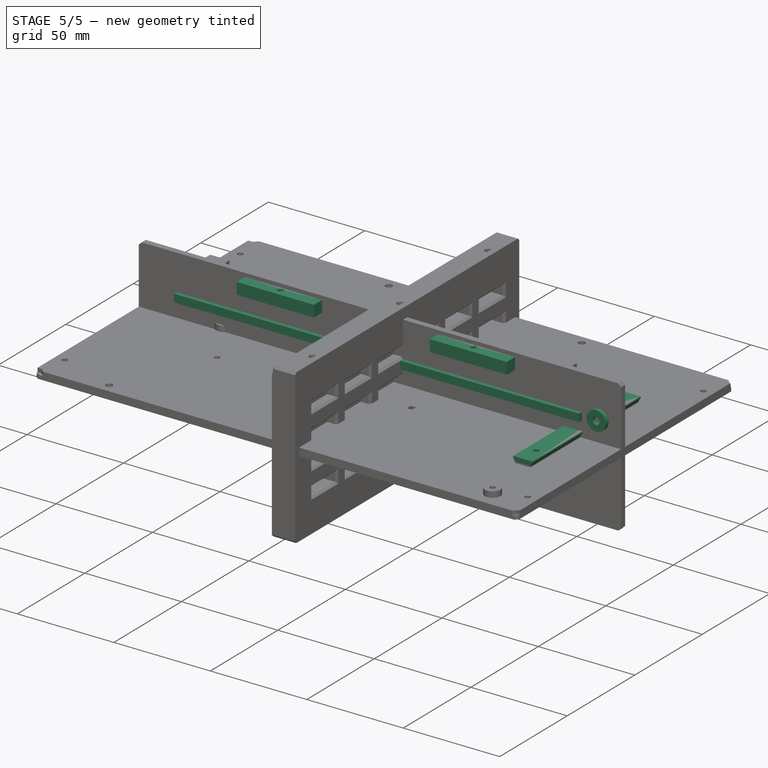
[diagram: stage 5 of 5 — iso view after this stage's code; geometry added in this stage tinted green]
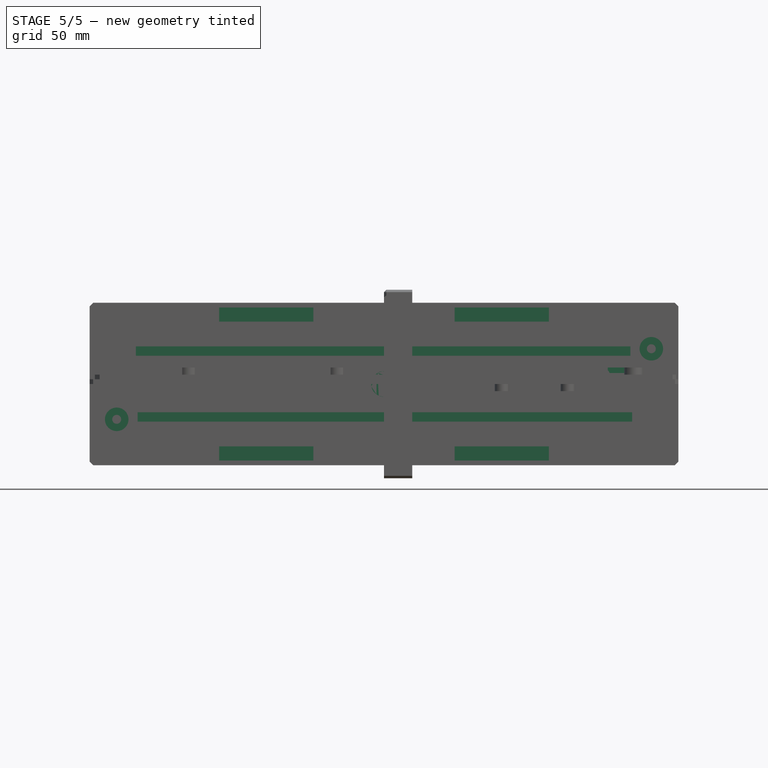
[diagram: stage 5 of 5 — front view after this stage's code; geometry added in this stage tinted green]
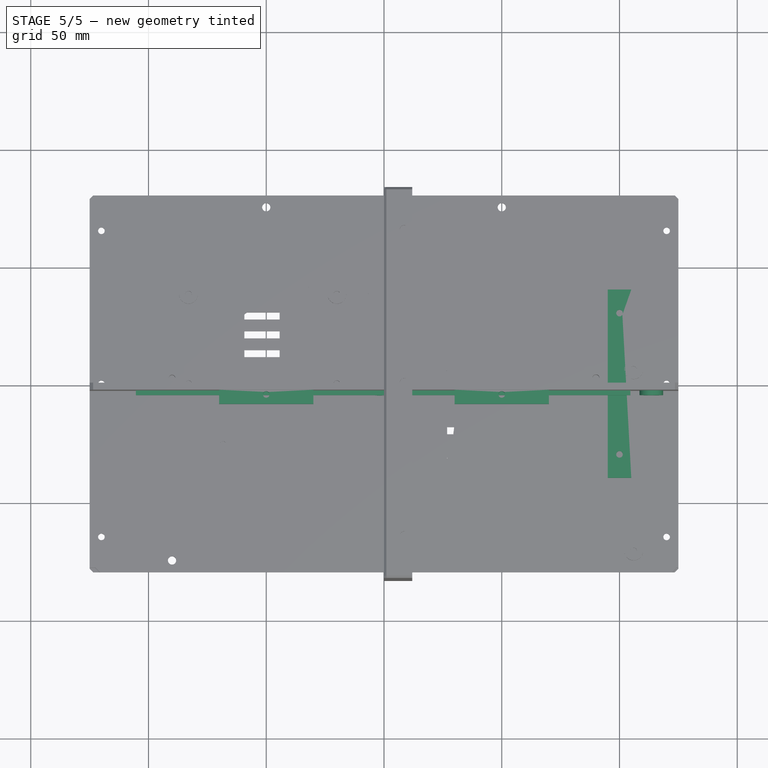
[diagram: stage 5 of 5 — top view after this stage's code; geometry added in this stage tinted green]
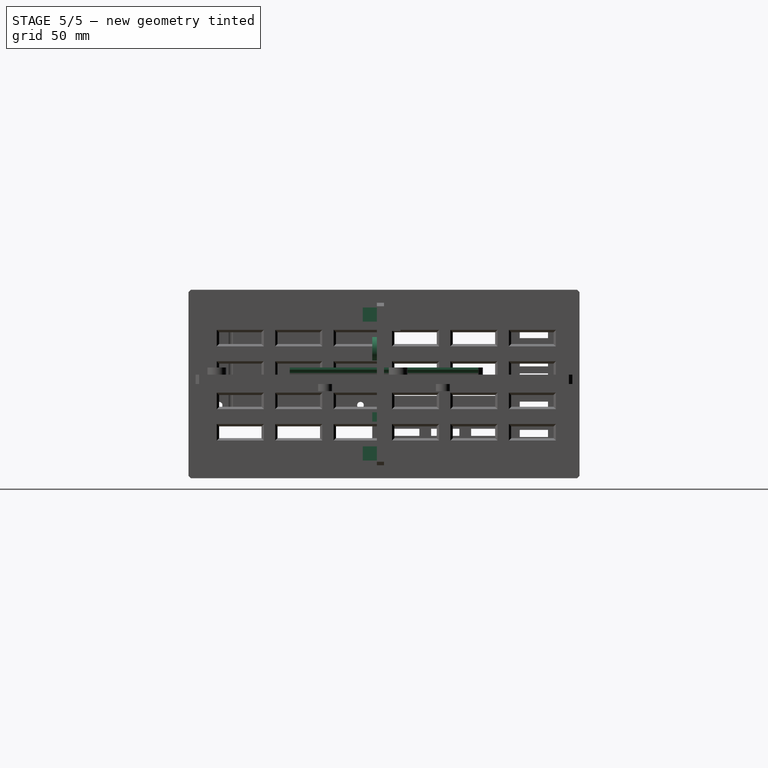
[diagram: stage 5 of 5 — right view after this stage's code; geometry added in this stage tinted green]
FEATURE [Sketcher::SketchObject] Sketch015  label="PSUMountScrews"
  FullyConstrained = true
  MapMode = 5
  Placement = pos=(0,0,0) rot=(-1,0,0;1.5708rad)
  Support = -> [Pad004]
  sketch-geometry (6):
    g0: Circle CenterX=-113.5 CenterY=15 CenterZ=0 NormalX=0 NormalY=0 NormalZ=1 AngleXU=0 Radius=1.9
    g1: Circle CenterX=113.5 CenterY=-15 CenterZ=0 NormalX=0 NormalY=0 NormalZ=1 AngleXU=0 Radius=1.9
    g2: LineSegment StartX=-115.5 StartY=25 StartZ=0 EndX=115.5 EndY=25 EndZ=0
    g3: LineSegment StartX=115.5 StartY=25 StartZ=0 EndX=115.5 EndY=-25 EndZ=0
    g4: LineSegment StartX=115.5 StartY=-25 StartZ=0 EndX=-115.5 EndY=-25 EndZ=0
    g5: LineSegment StartX=-115.5 StartY=-25 StartZ=0 EndX=-115.5 EndY=25 EndZ=0
  constraints (15):
    c: DistanceY(g1) = -15
    c: DistanceX(g0,g1) = 227
    c: Diameter(g0) = 3.8
    c: Equal(g0,g1)
    c: Coincident(g2,g3)
    c: Coincident(g3,g4)
    c: Coincident(g4,g5)
    c: Coincident(g5,g2)
    c: Horizontal(g4)
    c: Vertical(g5)
    c: Distance(g2) = 231
    c: Symmetric(g2,g2,g-2)
    c: Distance(g3) = 50
    c: Symmetric(g3,g2,g-1)
    c: Symmetric(g1,g0,g-1)
FEATURE [PartDesign::Pocket] Pocket007
  BaseFeature = -> Pad004
  Length = 9
  Length2 = 100
  Placement = pos=(0,0,0) rot=(1,0,0;1.5708rad)
  Profile = -> Sketch015
  Type = 4
FEATURE [Sketcher::SketchObject] Sketch030  label="ScrewHoles1"
  FullyConstrained = true
  MapMode = 5
  Placement = pos=(0,-5.8e-14,-32.5) rot=(1,0,0;3.14159rad)
  sketch-geometry (2):
    g0: Circle CenterX=-20 CenterY=-2 CenterZ=0 NormalX=0 NormalY=0 NormalZ=1 AngleXU=0 Radius=1.4
    g1: Circle CenterX=-90 CenterY=-2 CenterZ=0 NormalX=0 NormalY=0 NormalZ=1 AngleXU=0 Radius=1.4
  constraints (6):
    c: Diameter(g0) = 2.8
    c: DistanceX(g0) = -20
    c: Diameter(g1) = 2.8
    c: DistanceY(g1) = -2
    c: DistanceY(g0) = -2
    c: DistanceX(g1) = -90
FEATURE [Sketcher::SketchObject] Sketch032  label="SideScrewBosses"
  FullyConstrained = true
  MapMode = 5
  Placement = pos=(0,-7.2e-15,32.5) rot=(0,0,1;3.14159rad)
  Support = -> [Pocket007]
  sketch-geometry (8):
    g0: LineSegment StartX=-70 StartY=9 StartZ=0 EndX=-30 EndY=9 EndZ=0
    g1: LineSegment StartX=-30 StartY=9 StartZ=0 EndX=-30 EndY=1 EndZ=0
    g2: LineSegment StartX=-30 StartY=1 StartZ=0 EndX=-70 EndY=1 EndZ=0
    g3: LineSegment StartX=-70 StartY=1 StartZ=0 EndX=-70 EndY=9 EndZ=0
    g4: LineSegment StartX=30 StartY=9 StartZ=0 EndX=70 EndY=9 EndZ=0
    g5: LineSegment StartX=70 StartY=9 StartZ=0 EndX=70 EndY=1 EndZ=0
    g6: LineSegment StartX=70 StartY=1 StartZ=0 EndX=30 EndY=1 EndZ=0
    g7: LineSegment StartX=30 StartY=1 StartZ=0 EndX=30 EndY=9 EndZ=0
  constraints (23):
    c: Coincident(g0,g1)
    c: Coincident(g1,g2)
    c: Coincident(g2,g3)
    c: Coincident(g3,g0)
    c: Horizontal(g0)
    c: Horizontal(g2)
    c: Vertical(g1)
    c: Vertical(g3)
    c: Coincident(g4,g5)
    c: Coincident(g5,g6)
    c: Coincident(g6,g7)
    c: Coincident(g7,g4)
    c: Horizontal(g4)
    c: Horizontal(g6)
    c: Vertical(g5)
    c: Vertical(g7)
    c: Symmetric(g5,g2,g-2)
    c: DistanceX(g5) = 70
    c: Equal(g2,g6)
    c: Distance(g2) = 40
    c: DistanceY(g5) = 1
    c: Distance(g1) = 8
    c: Equal(g7,g1)
FEATURE [PartDesign::Pad] Pad011
  BaseFeature = -> Pocket007
  Direction = (1,1,1)
  Length = 6
  Length2 = 100
  Placement = pos=(0,0,0) rot=(1,0,0;1.5708rad)
  Profile = -> Sketch032
  Reversed = true
  Type = 0
FEATURE [PartDesign::Mirrored] Mirrored
  BaseFeature = -> Pad011
  MirrorPlane = -> XY_Plane003
  Originals = -> [Pad011]
  Placement = pos=(0,0,0) rot=(1,0,0;1.5708rad)
FEATURE [Sketcher::SketchObject] Sketch033  label="SideHoles1"
  FullyConstrained = true
  MapMode = 5
  Placement = pos=(0,0,32.5) rot=(0,0,1;3.14159rad)
  Support = -> [Mirrored]
  sketch-geometry (2):
    g0: Circle CenterX=-50 CenterY=5 CenterZ=0 NormalX=0 NormalY=0 NormalZ=1 AngleXU=0 Radius=1.4
    g1: Circle CenterX=50 CenterY=5 CenterZ=0 NormalX=0 NormalY=0 NormalZ=1 AngleXU=0 Radius=1.4
  constraints (5):
    c: DistanceY(g1) = 5
    c: Symmetric(g0,g1,g-2)
    c: Distance(g1,g0) = 100
    c: Diameter(g0) = 2.8
    c: Equal(g0,g1)
FEATURE [PartDesign::Pocket] Pocket017
  BaseFeature = -> Mirrored
  Length = 5
  Length2 = 100
  Placement = pos=(0,0,0) rot=(1,0,0;1.5708rad)
  Profile = -> Sketch033
  Type = 1
FEATURE [Sketcher::SketchObject] Sketch036  label="StiffenerRibs"
  FullyConstrained = false
  MapMode = 5
  Placement = pos=(0,-3,-7e-16) rot=(1,0,0;1.5708rad)
  Support = -> [Pocket017]
  sketch-geometry (13):
    g0: Circle CenterX=-113.497 CenterY=-14.9967 CenterZ=0 NormalX=0 NormalY=0 NormalZ=1 AngleXU=0 Radius=1.9
    g1: Circle CenterX=-113.497 CenterY=-14.9967 CenterZ=0 NormalX=0 NormalY=0 NormalZ=1 AngleXU=0 Radius=5
    g2: Circle CenterX=113.51 CenterY=14.9669 CenterZ=0 NormalX=0 NormalY=0 NormalZ=1 AngleXU=0 Radius=1.9
    g3: Circle CenterX=113.51 CenterY=14.9669 CenterZ=0 NormalX=0 NormalY=0 NormalZ=1 AngleXU=0 Radius=5
    g4: Circle CenterX=0 CenterY=0 CenterZ=0 NormalX=0 NormalY=0 NormalZ=1 AngleXU=0 Radius=5.45626
    g5: LineSegment StartX=-105.368 StartY=16 StartZ=0 EndX=104.632 EndY=16 EndZ=0
    g6: LineSegment StartX=104.632 StartY=16 StartZ=0 EndX=104.632 EndY=12 EndZ=0
    g7: LineSegment StartX=104.632 StartY=12 StartZ=0 EndX=-105.368 EndY=12 EndZ=0
    g8: LineSegment StartX=-105.368 StartY=12 StartZ=0 EndX=-105.368 EndY=16 EndZ=0
    g9: LineSegment StartX=-104.632 StartY=-12 StartZ=0 EndX=105.368 EndY=-12 EndZ=0
    g10: LineSegment StartX=105.368 StartY=-12 StartZ=0 EndX=105.368 EndY=-16 EndZ=0
    g11: LineSegment StartX=105.368 StartY=-16 StartZ=0 EndX=-104.632 EndY=-16 EndZ=0
    g12: LineSegment StartX=-104.632 StartY=-16 StartZ=0 EndX=-104.632 EndY=-12 EndZ=0
  constraints (29):
    c: Coincident(g1,g0)
    c: Coincident(g3,g2)
    c: Diameter(g0) = 3.8
    c: Diameter(g1) = 10
    c: Diameter(g2) = 3.8
    c: Diameter(g3) = 10
    c: Coincident(g4,g-1)
    c: Coincident(g5,g6)
    c: Coincident(g6,g7)
    c: Coincident(g7,g8)
    c: Coincident(g8,g5)
    c: Horizontal(g5)
    c: Horizontal(g7)
    c: Vertical(g6)
    c: Vertical(g8)
    c: Coincident(g9,g10)
    c: Coincident(g10,g11)
    c: Coincident(g11,g12)
    c: Coincident(g12,g9)
    c: Horizontal(g9)
    c: Horizontal(g11)
    c: Vertical(g10)
    c: Vertical(g12)
    c: Distance(g12) = 4
    c: Distance(g8) = 4
    c: Distance(g5) = 210
    c: Distance(g9) = 210
    c: Symmetric(g9,g7,g4)
    c: DistanceY(g6) = 12
FEATURE [PartDesign::Pad] Pad013
  BaseFeature = -> Pocket017
  Direction = (1,1,1)
  Length = 2
  Length2 = 100
  Placement = pos=(0,0,0) rot=(1,0,0;1.5708rad)
  Profile = -> Sketch036
  Type = 0
FEATURE [Sketcher::SketchObject] Sketch037  label="CoolingVent"
  FullyConstrained = true
  MapMode = 5
  Placement = pos=(0,-3,-7e-16) rot=(1,0,0;1.5708rad)
  Support = -> [Pad013]
  sketch-geometry (4):
    g0: LineSegment StartX=-85 StartY=1.5 StartZ=0 EndX=-100 EndY=1.5 EndZ=0
    g1: LineSegment StartX=-100 StartY=1.5 StartZ=0 EndX=-100 EndY=-1.5 EndZ=0
    g2: LineSegment StartX=-100 StartY=-1.5 StartZ=0 EndX=-85 EndY=-1.5 EndZ=0
    g3: LineSegment StartX=-85 StartY=-1.5 StartZ=0 EndX=-85 EndY=1.5 EndZ=0
  constraints (11):
    c: Coincident(g0,g1)
    c: Coincident(g1,g2)
    c: Coincident(g2,g3)
    c: Coincident(g3,g0)
    c: Horizontal(g0)
    c: Horizontal(g2)
    c: Vertical(g3)
    c: Distance(g0) = 15
    c: Distance(g1) = 3
    c: DistanceX(g0) = -100
    c: Symmetric(g1,g0,g-1)
FEATURE [PartDesign::Pocket] Pocket019
  BaseFeature = -> Pad013
  Length = 5
  Length2 = 100
  Placement = pos=(0,0,0) rot=(1,0,0;1.5708rad)
  Profile = -> Sketch037
  Type = 0
FEATURE [PartDesign::LinearPattern] LinearPattern002
  Direction = -> Sketch037 [H_Axis]
  Length = 184
  Occurrences = 6
  Placement = pos=(0,0,0) rot=(1,0,0;1.5708rad)
FEATURE [PartDesign::MultiTransform] MultiTransform001
  BaseFeature = -> Pocket019
  Originals = -> [Pocket019]
  Placement = pos=(0,0,0) rot=(1,0,0;1.5708rad)
  Transformations = -> [LinearPattern002]
FEATURE [Sketcher::SketchObject] Sketch044  label="SideNotchTab"
  FullyConstrained = true
  MapMode = 5
  Placement = pos=(-125,0,0) rot=(0.707107,0,-0.707107;3.14159rad)
  Support = -> [MultiTransform001]
  sketch-geometry (4):
    g0: LineSegment StartX=-32.5 StartY=0 StartZ=0 EndX=-34.5 EndY=0 EndZ=0
    g1: LineSegment StartX=-34.5 StartY=0 StartZ=0 EndX=-34.5 EndY=2 EndZ=0
    g2: LineSegment StartX=-34.5 StartY=2 StartZ=0 EndX=-32.5 EndY=2 EndZ=0
    g3: LineSegment StartX=-32.5 StartY=2 StartZ=0 EndX=-32.5 EndY=0 EndZ=0
  constraints (12):
    c: Coincident(g0,g1)
    c: Coincident(g1,g2)
    c: Coincident(g2,g3)
    c: Coincident(g3,g0)
    c: Horizontal(g0)
    c: Horizontal(g2)
    c: Vertical(g1)
    c: Vertical(g3)
    c: PointOnObject(g0,g-1)
    c: Distance(g2) = 2
    c: Distance(g1) = 2
    c: DistanceX(g0) = -32.5
FEATURE [PartDesign::Pad] Pad017
  BaseFeature = -> MultiTransform001
  Direction = (1,1,1)
  Length = 250
  Length2 = 100
  Placement = pos=(0,0,0) rot=(1,0,0;1.5708rad)
  Profile = -> Sketch044
  Reversed = true
  Type = 0
FEATURE [Sketcher::SketchObject] Sketch045
  FullyConstrained = false
  MapMode = 5
  Support = -> [XY_Plane006]
  sketch-geometry (5):
    g0: LineSegment StartX=95 StartY=40 StartZ=0 EndX=105 EndY=40 EndZ=0
    g1: LineSegment StartX=105 StartY=40 StartZ=0 EndX=105 EndY=-40 EndZ=0
    g2: LineSegment StartX=105 StartY=-40 StartZ=0 EndX=95 EndY=-40 EndZ=0
    g3: LineSegment StartX=95 StartY=-40 StartZ=0 EndX=95 EndY=40 EndZ=0
    g4: LineSegment StartX=100 StartY=48.1766 StartZ=0 EndX=100 EndY=-54.3011 EndZ=0
  constraints (12):
    c: Coincident(g0,g1)
    c: Coincident(g1,g2)
    c: Coincident(g2,g3)
    c: Coincident(g3,g0)
    c: Horizontal(g0)
    c: Horizontal(g2)
    c: Vertical(g3)
    c: DistanceX(g4) = 100
    c: Symmetric(g0,g0,g4)
    c: Symmetric(g0,g1,g-1)
    c: Distance(g1) = 80
    c: Distance(g2) = 10
FEATURE [PartDesign::Pad] Pad018
  Direction = (1,1,1)
  Length = 7
  Length2 = 100
  Profile = -> Sketch045
  Type = 0
FEATURE [Sketcher::SketchObject] Sketch046
  FullyConstrained = true
  MapMode = 5
  Placement = pos=(0,0,0) rot=(1,0,0;3.14159rad)
  Support = -> [Pad018]
  sketch-geometry (2):
    g0: Circle CenterX=100 CenterY=30 CenterZ=0 NormalX=0 NormalY=0 NormalZ=1 AngleXU=0 Radius=1.4
    g1: Circle CenterX=100 CenterY=-30 CenterZ=0 NormalX=0 NormalY=0 NormalZ=1 AngleXU=0 Radius=1.4
  constraints (5):
    c: Diameter(g0) = 2.8
    c: Equal(g0,g1)
    c: Symmetric(g1,g0,g-1)
    c: DistanceX(g0) = 100
    c: Distance(g1,g0) = 60
FEATURE [PartDesign::Pocket] Pocket026
  BaseFeature = -> Pad018
  Length = 8
  Length2 = 100
  Profile = -> Sketch046
  Type = 0
FEATURE [Sketcher::SketchObject] Sketch047
  FullyConstrained = false
  MapMode = 5
  Placement = pos=(0,-40,0) rot=(1,0,0;1.5708rad)
  Support = -> [Pocket026]
  sketch-geometry (2):
    g0: Circle CenterX=107.358 CenterY=3.5 CenterZ=0 NormalX=0 NormalY=0 NormalZ=1 AngleXU=0 Radius=3.5
    g1: Circle CenterX=92.4718 CenterY=3.5 CenterZ=0 NormalX=0 NormalY=0 NormalZ=1 AngleXU=0 Radius=3.5
  constraints (4):
    c: DistanceY(g0) = 3.5
    c: DistanceY(g1) = 3.5
    c: Diameter(g0) = 7
    c: Equal(g0,g1)
FEATURE [PartDesign::Pocket] Pocket027
  BaseFeature = -> Pocket026
  Length = 5
  Length2 = 100
  Profile = -> Sketch047
  Type = 1
FEATURE [PartDesign::Body] Body006  label="FanHandle"
  Group = -> [Sketch045,Pad018,Sketch046,Pocket026,Sketch047,Pocket027]
  Origin = -> Origin006
  Placement = pos=(0,0,36.5) rot=(0,0,1;0rad)
  Tip = -> Pocket027
FEATURE [Sketcher::SketchObject] Sketch049  label="Fillet"
  FullyConstrained = true
  MapMode = 5
  Placement = pos=(-9.5e-14,4.9e-14,40) rot=(0,0,-1;1.5708rad)
  sketch-geometry (3):
    g0: LineSegment StartX=-80.25 StartY=4.75736 StartZ=0 EndX=-76.0074 EndY=9 EndZ=0
    g1: LineSegment StartX=-76.0074 StartY=9 StartZ=0 EndX=-80.25 EndY=9 EndZ=0
    g2: LineSegment StartX=-80.25 StartY=9 StartZ=0 EndX=-80.25 EndY=4.75736 EndZ=0
  constraints (9):
    c: Coincident(g0,g1)
    c: Horizontal(g1)
    c: Coincident(g1,g2)
    c: Coincident(g2,g0)
    c: Vertical(g2)
    c: Angle(g0) = 0.785398
    c: DistanceY(g0) = 9
    c: Distance(g0) = 6
    c: DistanceX(g0) = -80.25
FEATURE [PartDesign::Mirrored] Mirrored003
  BaseFeature = -> Pad017
  MirrorPlane = -> Sketch044 [V_Axis]
  Originals = -> [Pad017]
  Placement = pos=(0,0,0) rot=(1,0,0;1.5708rad)
FEATURE [PartDesign::Chamfer] Chamfer025
  Angle = 45
  Base = -> Mirrored003 [Edge220,Edge74,Edge73,Edge197]
  BaseFeature = -> Mirrored003
  ChamferType = 0
  FlipDirection = false
  Placement = pos=(0,0,0) rot=(1,0,0;1.5708rad)
  Size = 1.5
  Size2 = 1
  SupportTransform = false
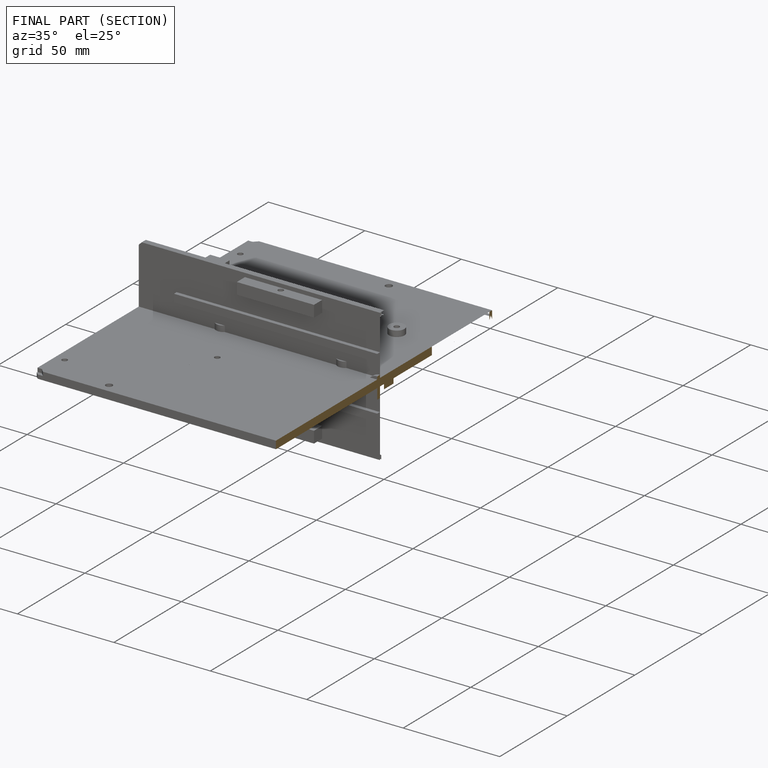
[diagram: finished part — half-section view (interior)]
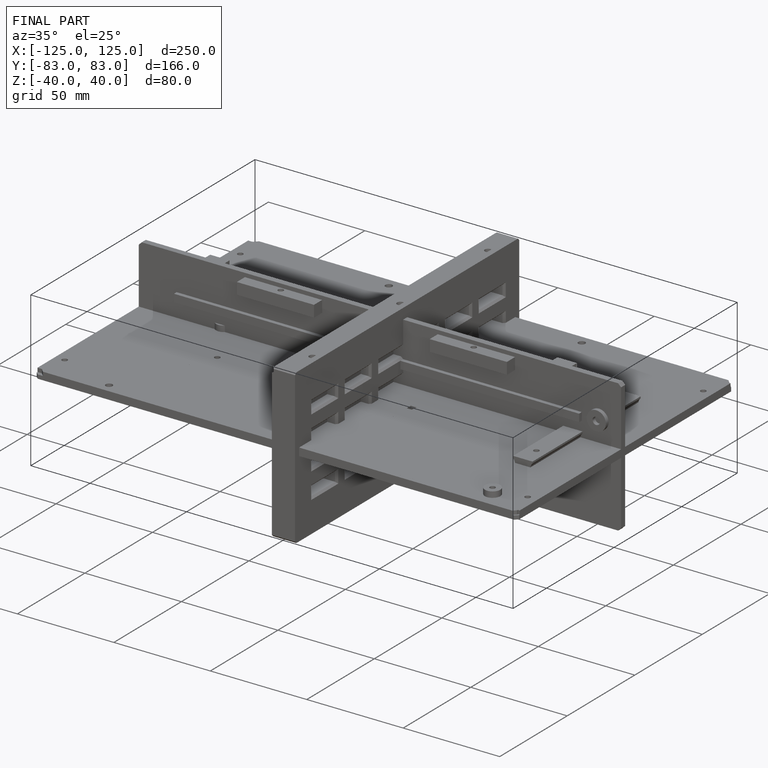
[diagram: finished part — iso view with bounding-box wireframe]
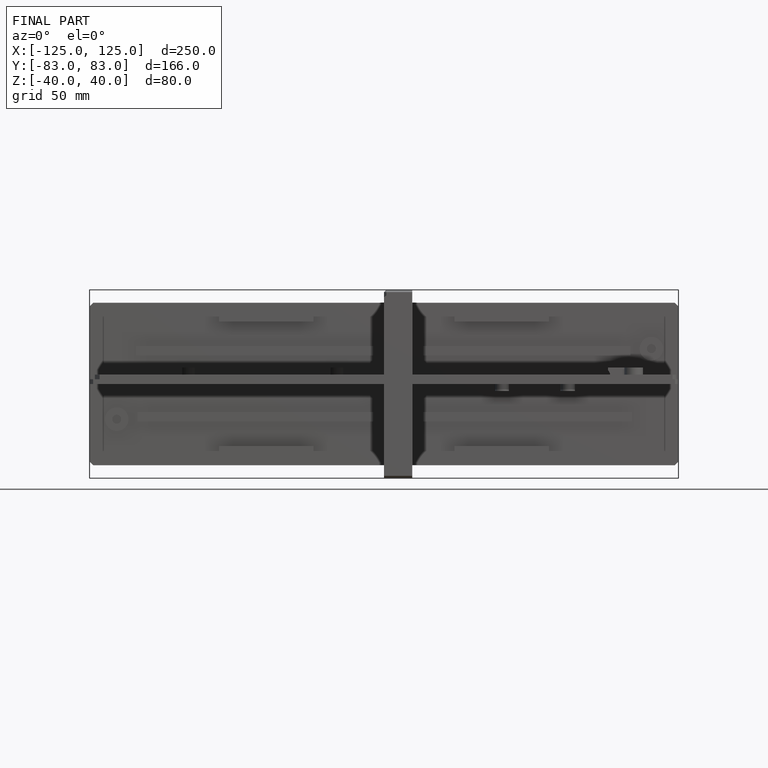
[diagram: finished part — front view with bounding-box wireframe]
